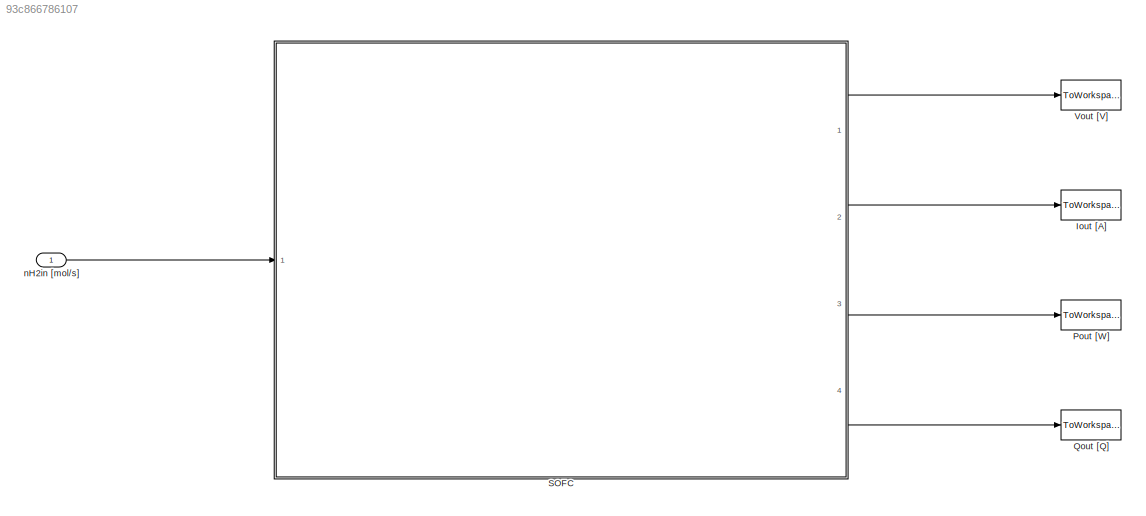
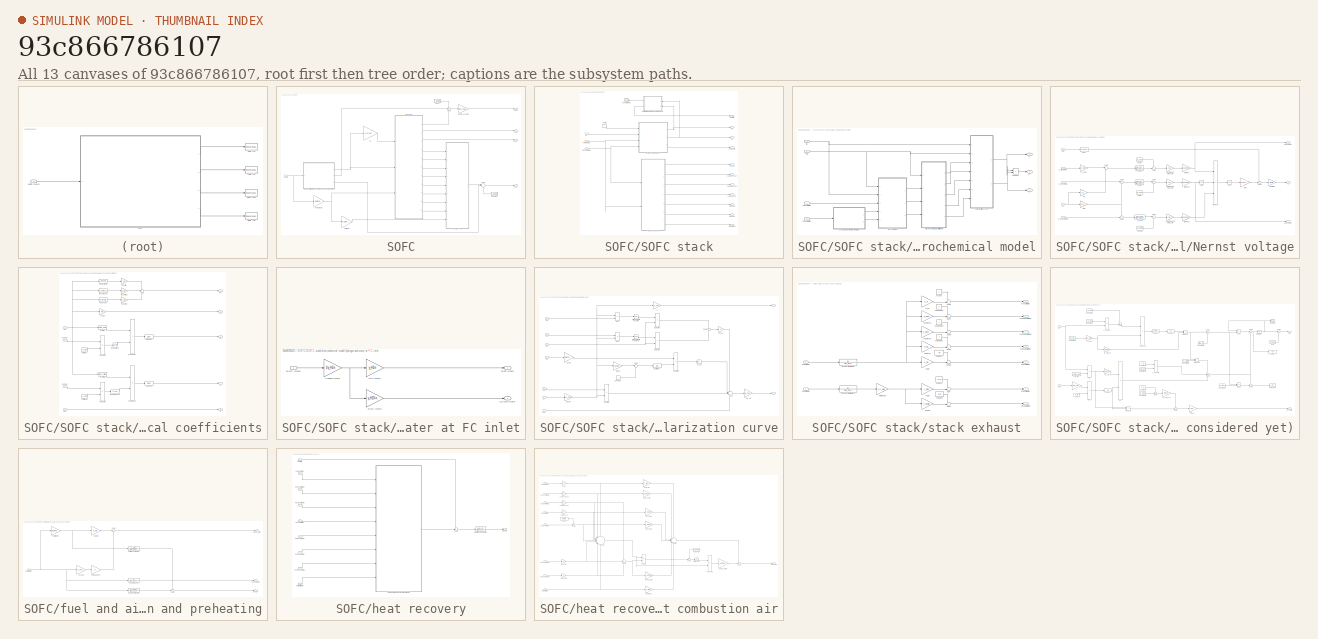
[diagram: thumbnail index - all 13 canvases of the model, root first then tree order]
MODEL slx_93c866786107
KIND model
CONFIG AbsTol = auto
CONFIG FixedStep = auto
CONFIG MaxStep = 1
CONFIG MinStep = 0.00001
CONFIG RelTol = 1e-3
CONFIG SampleTimeConstraint = Unconstrained
CONFIG Solver = ode113
CONFIG SolverMode = SingleTasking
CONFIG SolverName = ode113
CONFIG StartTime = 0.0
CONFIG StopTime = 1000
BLOCK [ToWorkspace] Iout [A]
  FixptAsFi = on
  MaxDataPoints = inf
  Ports = [1]
  SampleTime = -1
  Save2DSignal = 3-D array (concatenate along third dimension)
  SaveFormat = Timeseries
  VariableName = II
BLOCK [ToWorkspace] Pout [W]
  FixptAsFi = on
  MaxDataPoints = inf
  Ports = [1]
  SampleTime = -1
  Save2DSignal = 3-D array (concatenate along third dimension)
  SaveFormat = Timeseries
  VariableName = PP
BLOCK [ToWorkspace] Qout [Q]
  FixptAsFi = on
  MaxDataPoints = inf
  Ports = [1]
  SampleTime = -1
  Save2DSignal = 3-D array (concatenate along third dimension)
  SaveFormat = Timeseries
  VariableName = QQ
BLOCK [SubSystem] SOFC
  Ports = [1, 4]
  RequestExecContextInheritance = off
  Variant = off
BLOCK [Gain] SOFC/AC//DC converter
  Gain = eta_ACDC
  OutDataTypeStr = Inherit: Inherit via internal rule
  ParamDataTypeStr = Inherit: Inherit via internal rule
  SaturateOnIntegerOverflow = off
BLOCK [Gain] SOFC/I [A]
  Gain = 2*F*U/N_cell
  OutDataTypeStr = Inherit: Inherit via internal rule
  ParamDataTypeStr = Inherit: Inherit via internal rule
  SaturateOnIntegerOverflow = off
BLOCK [Outport] SOFC/Iout
  IconDisplay = Port number
  Port = 2
BLOCK [Constant] SOFC/Paux
  Value = P_gamma
BLOCK [Outport] SOFC/Pout
  IconDisplay = Port number
  Port = 3
BLOCK [Constant] SOFC/Q heat up
  Value = Q_gamma
BLOCK [Outport] SOFC/Qout
  IconDisplay = Port number
  Port = 4
BLOCK [SubSystem] SOFC/SOFC stack
  Ports = [3, 11]
  RequestExecContextInheritance = off
  Variant = off
BLOCK [Inport] SOFC/SOFC stack/I [A]
  IconDisplay = Port number
BLOCK [Outport] SOFC/SOFC stack/I [A] 
  IconDisplay = Port number
  Port = 3
BLOCK [Outport] SOFC/SOFC stack/Pstack [W]
  IconDisplay = Port number
BLOCK [Outport] SOFC/SOFC stack/Qcell [W]
  IconDisplay = Port number
  Port = 4
BLOCK [Scope] SOFC/SOFC stack/T evolution [K]
  Ports = [1]
  ScopeSpecificationString = C++SS(StrPVP('SaveName','ScopeData1'),StrPVP('LimitDataPoints','on'),StrPVP('DataFormat','Array'),StrPVP('Decimation','1'),StrPVP('BlockParamSampleInput','off'))
BLOCK [Constant] SOFC/SOFC stack/Tcell [K]
  Value = T
BLOCK [Outport] SOFC/SOFC stack/V [V]
  IconDisplay = Port number
  Port = 2
BLOCK [SubSystem] SOFC/SOFC stack/electrochemical model
  Ports = [4, 3]
  RequestExecContextInheritance = off
  Variant = off
BLOCK [Outport] SOFC/SOFC stack/electrochemical model/I
  IconDisplay = Port number
  Port = 2
BLOCK [Inport] SOFC/SOFC stack/electrochemical model/I [A]
  IconDisplay = Port number
  Port = 2
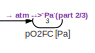
[diagram: SOFC/SOFC stack/electrochemical model/Nernst voltage - part 1/3, top right region]
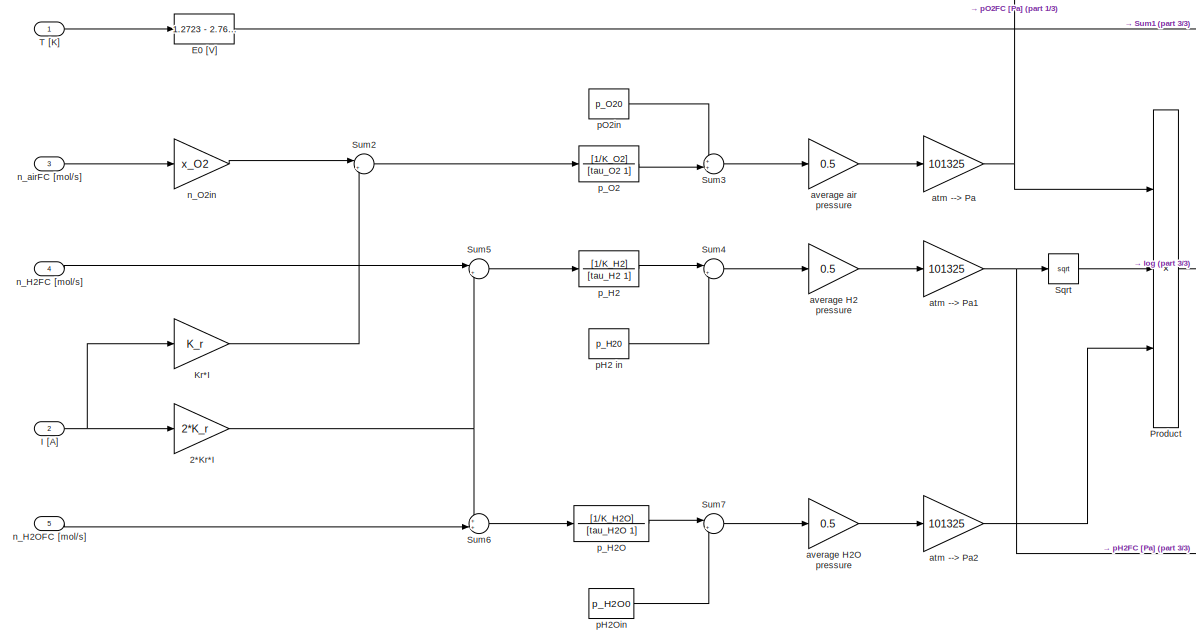
[diagram: SOFC/SOFC stack/electrochemical model/Nernst voltage - part 2/3, center side, full height]
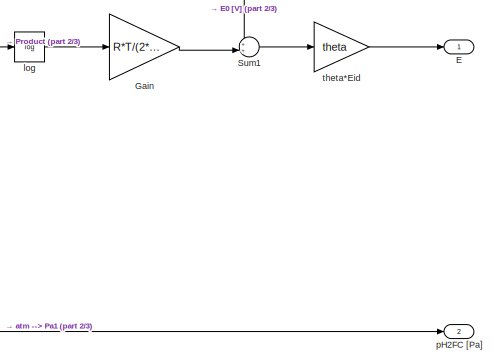
[diagram: SOFC/SOFC stack/electrochemical model/Nernst voltage - part 3/3, middle right region]
BLOCK [SubSystem] SOFC/SOFC stack/electrochemical model/Nernst voltage
  Ports = [5, 3]
  RequestExecContextInheritance = off
  Variant = off
BLOCK [Gain] SOFC/SOFC stack/electrochemical model/Nernst voltage/2*Kr*I
  Gain = 2*K_r
  OutDataTypeStr = Inherit: Inherit via internal rule
  ParamDataTypeStr = Inherit: Inherit via internal rule
  SaturateOnIntegerOverflow = off
BLOCK [Outport] SOFC/SOFC stack/electrochemical model/Nernst voltage/E
  IconDisplay = Port number
BLOCK [Fcn] SOFC/SOFC stack/electrochemical model/Nernst voltage/E0 [V]
  Expr = 1.2723 - 2.7645e-4 * u
BLOCK [Gain] SOFC/SOFC stack/electrochemical model/Nernst voltage/Gain
  Gain = R*T/(2*F)
  OutDataTypeStr = Inherit: Inherit via internal rule
  ParamDataTypeStr = Inherit: Inherit via internal rule
  SaturateOnIntegerOverflow = off
BLOCK [Inport] SOFC/SOFC stack/electrochemical model/Nernst voltage/I [A]
  IconDisplay = Port number
  Port = 2
BLOCK [Gain] SOFC/SOFC stack/electrochemical model/Nernst voltage/Kr*I
  Gain = K_r
  OutDataTypeStr = Inherit: Inherit via internal rule
  ParamDataTypeStr = Inherit: Inherit via internal rule
  SaturateOnIntegerOverflow = off
BLOCK [Product] SOFC/SOFC stack/electrochemical model/Nernst voltage/Product
  InputSameDT = off
  Inputs = **/
  OutDataTypeStr = Inherit: Inherit via internal rule
  Ports = [3, 1]
  RndMeth = Floor
  SaturateOnIntegerOverflow = off
BLOCK [Sqrt] SOFC/SOFC stack/electrochemical model/Nernst voltage/Sqrt
BLOCK [Sum] SOFC/SOFC stack/electrochemical model/Nernst voltage/Sum1
  IconShape = round
  InputSameDT = off
  Inputs = ++|
  OutDataTypeStr = Inherit: Inherit via internal rule
  Ports = [2, 1]
  SaturateOnIntegerOverflow = off
BLOCK [Sum] SOFC/SOFC stack/electrochemical model/Nernst voltage/Sum2
  IconShape = round
  InputSameDT = off
  Inputs = |+-
  OutDataTypeStr = Inherit: Inherit via internal rule
  Ports = [2, 1]
  SaturateOnIntegerOverflow = off
BLOCK [Sum] SOFC/SOFC stack/electrochemical model/Nernst voltage/Sum3
  IconShape = round
  InputSameDT = off
  Inputs = ++|
  OutDataTypeStr = Inherit: Inherit via internal rule
  Ports = [2, 1]
  SaturateOnIntegerOverflow = off
BLOCK [Sum] SOFC/SOFC stack/electrochemical model/Nernst voltage/Sum4
  IconShape = round
  InputSameDT = off
  Inputs = |++
  OutDataTypeStr = Inherit: Inherit via internal rule
  Ports = [2, 1]
  SaturateOnIntegerOverflow = off
BLOCK [Sum] SOFC/SOFC stack/electrochemical model/Nernst voltage/Sum5
  IconShape = round
  InputSameDT = off
  Inputs = |+-
  OutDataTypeStr = Inherit: Inherit via internal rule
  Ports = [2, 1]
  SaturateOnIntegerOverflow = off
BLOCK [Sum] SOFC/SOFC stack/electrochemical model/Nernst voltage/Sum6
  IconShape = round
  InputSameDT = off
  Inputs = ++|
  OutDataTypeStr = Inherit: Inherit via internal rule
  Ports = [2, 1]
  SaturateOnIntegerOverflow = off
BLOCK [Sum] SOFC/SOFC stack/electrochemical model/Nernst voltage/Sum7
  IconShape = round
  InputSameDT = off
  Inputs = |++
  OutDataTypeStr = Inherit: Inherit via internal rule
  Ports = [2, 1]
  SaturateOnIntegerOverflow = off
BLOCK [Inport] SOFC/SOFC stack/electrochemical model/Nernst voltage/T [K]
  IconDisplay = Port number
BLOCK [Gain] SOFC/SOFC stack/electrochemical model/Nernst voltage/atm --> Pa
  Gain = 101325
  OutDataTypeStr = Inherit: Inherit via internal rule
  ParamDataTypeStr = Inherit: Inherit via internal rule
  SaturateOnIntegerOverflow = off
BLOCK [Gain] SOFC/SOFC stack/electrochemical model/Nernst voltage/atm --> Pa1
  Gain = 101325
  OutDataTypeStr = Inherit: Inherit via internal rule
  ParamDataTypeStr = Inherit: Inherit via internal rule
  SaturateOnIntegerOverflow = off
BLOCK [Gain] SOFC/SOFC stack/electrochemical model/Nernst voltage/atm --> Pa2
  Gain = 101325
  OutDataTypeStr = Inherit: Inherit via internal rule
  ParamDataTypeStr = Inherit: Inherit via internal rule
  SaturateOnIntegerOverflow = off
BLOCK [Gain] SOFC/SOFC stack/electrochemical model/Nernst voltage/average H2 pressure
  Gain = 0.5
  OutDataTypeStr = Inherit: Inherit via internal rule
  ParamDataTypeStr = Inherit: Inherit via internal rule
  SaturateOnIntegerOverflow = off
BLOCK [Gain] SOFC/SOFC stack/electrochemical model/Nernst voltage/average H2O pressure
  Gain = 0.5
  OutDataTypeStr = Inherit: Inherit via internal rule
  ParamDataTypeStr = Inherit: Inherit via internal rule
  SaturateOnIntegerOverflow = off
BLOCK [Gain] SOFC/SOFC stack/electrochemical model/Nernst voltage/average air pressure
  Gain = 0.5
  OutDataTypeStr = Inherit: Inherit via internal rule
  ParamDataTypeStr = Inherit: Inherit via internal rule
  SaturateOnIntegerOverflow = off
BLOCK [Math] SOFC/SOFC stack/electrochemical model/Nernst voltage/log
  Operator = log
  Ports = [1, 1]
BLOCK [Inport] SOFC/SOFC stack/electrochemical model/Nernst voltage/n_H2FC [mol//s]
  IconDisplay = Port number
  Port = 4
BLOCK [Inport] SOFC/SOFC stack/electrochemical model/Nernst voltage/n_H2OFC [mol//s]
  IconDisplay = Port number
  Port = 5
BLOCK [Gain] SOFC/SOFC stack/electrochemical model/Nernst voltage/n_O2in
  Gain = x_O2
  OutDataTypeStr = Inherit: Inherit via internal rule
  ParamDataTypeStr = Inherit: Inherit via internal rule
  SaturateOnIntegerOverflow = off
BLOCK [Inport] SOFC/SOFC stack/electrochemical model/Nernst voltage/n_airFC [mol//s]
  IconDisplay = Port number
  Port = 3
BLOCK [Constant] SOFC/SOFC stack/electrochemical model/Nernst voltage/pH2 in
  Value = p_H20
BLOCK [Outport] SOFC/SOFC stack/electrochemical model/Nernst voltage/pH2FC [Pa]
  IconDisplay = Port number
  Port = 2
BLOCK [Constant] SOFC/SOFC stack/electrochemical model/Nernst voltage/pH2Oin
  Value = p_H2O0
BLOCK [Outport] SOFC/SOFC stack/electrochemical model/Nernst voltage/pO2FC [Pa]
  IconDisplay = Port number
  Port = 3
BLOCK [Constant] SOFC/SOFC stack/electrochemical model/Nernst voltage/pO2in
  Value = p_O20
BLOCK [TransferFcn] SOFC/SOFC stack/electrochemical model/Nernst voltage/p_H2
  ContinuousStateAttributes = 'p_H2'
  Denominator = [tau_H2 1]
  Numerator = [1/K_H2]
BLOCK [TransferFcn] SOFC/SOFC stack/electrochemical model/Nernst voltage/p_H2O
  ContinuousStateAttributes = 'p_H2'
  Denominator = [tau_H2O 1]
  Numerator = [1/K_H2O]
BLOCK [TransferFcn] SOFC/SOFC stack/electrochemical model/Nernst voltage/p_O2
  ContinuousStateAttributes = 'p_O2'
  Denominator = [tau_O2 1]
  Numerator = [1/K_O2]
BLOCK [Gain] SOFC/SOFC stack/electrochemical model/Nernst voltage/theta*Eid
  Gain = theta
  OutDataTypeStr = Inherit: Inherit via internal rule
  ParamDataTypeStr = Inherit: Inherit via internal rule
  SaturateOnIntegerOverflow = off
BLOCK [Outport] SOFC/SOFC stack/electrochemical model/P
  IconDisplay = Port number
  Port = 3
BLOCK [Product] SOFC/SOFC stack/electrochemical model/Product
  InputSameDT = off
  OutDataTypeStr = Inherit: Inherit via internal rule
  Ports = [2, 1]
  RndMeth = Floor
  SaturateOnIntegerOverflow = off
BLOCK [Inport] SOFC/SOFC stack/electrochemical model/T [K]
  IconDisplay = Port number
BLOCK [Outport] SOFC/SOFC stack/electrochemical model/V
  IconDisplay = Port number
BLOCK [SubSystem] SOFC/SOFC stack/electrochemical model/electrochemical coefficients
  Ports = [4, 5]
  RequestExecContextInheritance = off
  Variant = off
BLOCK [Fcn] SOFC/SOFC stack/electrochemical model/electrochemical coefficients/(pH2//patm)^0.25
  Expr = u^0.25
BLOCK [Math] SOFC/SOFC stack/electrochemical model/electrochemical coefficients/(pH2//patm)^2
  Operator = magnitude^2
  Ports = [1, 1]
BLOCK [Outport] SOFC/SOFC stack/electrochemical model/electrochemical coefficients/E
  IconDisplay = Port number
  Port = 5
BLOCK [Inport] SOFC/SOFC stack/electrochemical model/electrochemical coefficients/E [V]
  IconDisplay = Port number
  Port = 2
BLOCK [Outport] SOFC/SOFC stack/electrochemical model/electrochemical coefficients/K1
  IconDisplay = Port number
  Port = 2
BLOCK [Gain] SOFC/SOFC stack/electrochemical model/electrochemical coefficients/K1 [J//C]
  Gain = R/F
  OutDataTypeStr = Inherit: Inherit via internal rule
  ParamDataTypeStr = Inherit: Inherit via internal rule
  SaturateOnIntegerOverflow = off
BLOCK [Outport] SOFC/SOFC stack/electrochemical model/electrochemical coefficients/K2
  IconDisplay = Port number
  Port = 3
BLOCK [Fcn] SOFC/SOFC stack/electrochemical model/electrochemical coefficients/K2 [cm2//A]
  Expr = 1/(2*u)
BLOCK [Outport] SOFC/SOFC stack/electrochemical model/electrochemical coefficients/K3
  IconDisplay = Port number
  Port = 4
BLOCK [Fcn] SOFC/SOFC stack/electrochemical model/electrochemical coefficients/K3 [cm2//a]
  Expr = 1/(2*u)
BLOCK [Sum] SOFC/SOFC stack/electrochemical model/electrochemical coefficients/Sum
  IconShape = round
  InputSameDT = off
  Inputs = +++
  OutDataTypeStr = Inherit: Inherit via internal rule
  Ports = [3, 1]
  SaturateOnIntegerOverflow = off
BLOCK [Inport] SOFC/SOFC stack/electrochemical model/electrochemical coefficients/T [K]
  IconDisplay = Port number
BLOCK [Fcn] SOFC/SOFC stack/electrochemical model/electrochemical coefficients/exp(f(T))
  Expr = gamma_an * (exp (- E_act_an/(R*u)))
BLOCK [Fcn] SOFC/SOFC stack/electrochemical model/electrochemical coefficients/exp(f(T))1
  Expr = gamma_cat*(exp (-E_act_cat/(R*u)))
BLOCK [Product] SOFC/SOFC stack/electrochemical model/electrochemical coefficients/i0 an [A//cm2]
  InputSameDT = off
  OutDataTypeStr = Inherit: Inherit via internal rule
  Ports = [2, 1]
  RndMeth = Floor
  SaturateOnIntegerOverflow = off
BLOCK [Product] SOFC/SOFC stack/electrochemical model/electrochemical coefficients/i0 cat [A//cm2]
  InputSameDT = off
  OutDataTypeStr = Inherit: Inherit via internal rule
  Ports = [2, 1]
  RndMeth = Floor
  SaturateOnIntegerOverflow = off
BLOCK [Constant] SOFC/SOFC stack/electrochemical model/electrochemical coefficients/p atm [Pa]
  Value = p_atm
BLOCK [Constant] SOFC/SOFC stack/electrochemical model/electrochemical coefficients/p atm [Pa]1
  Value = p_atm
BLOCK [Inport] SOFC/SOFC stack/electrochemical model/electrochemical coefficients/pH2 [Pa] 
  IconDisplay = Port number
  Port = 3
BLOCK [Product] SOFC/SOFC stack/electrochemical model/electrochemical coefficients/pH2//patm
  InputSameDT = off
  Inputs = */
  OutDataTypeStr = Inherit: Inherit via internal rule
  Ports = [2, 1]
  RndMeth = Floor
  SaturateOnIntegerOverflow = off
BLOCK [Inport] SOFC/SOFC stack/electrochemical model/electrochemical coefficients/pO2 [Pa]
  IconDisplay = Port number
  Port = 4
BLOCK [Product] SOFC/SOFC stack/electrochemical model/electrochemical coefficients/pO2//patm
  InputSameDT = off
  Inputs = */
  OutDataTypeStr = Inherit: Inherit via internal rule
  Ports = [2, 1]
  RndMeth = Floor
  SaturateOnIntegerOverflow = off
BLOCK [Outport] SOFC/SOFC stack/electrochemical model/electrochemical coefficients/rho
  IconDisplay = Port number
BLOCK [Fcn] SOFC/SOFC stack/electrochemical model/electrochemical coefficients/rho anode
  Expr = A_an * exp (B_an / u)
BLOCK [Fcn] SOFC/SOFC stack/electrochemical model/electrochemical coefficients/rho cathode
  Expr = A_cat * exp (B_cat / u)
BLOCK [Fcn] SOFC/SOFC stack/electrochemical model/electrochemical coefficients/rho electrolyte
  Expr = A_el * exp (B_el / u)
BLOCK [Gain] SOFC/SOFC stack/electrochemical model/electrochemical coefficients/rhoan * tan
  Gain = t_an
  OutDataTypeStr = Inherit: Inherit via internal rule
  ParamDataTypeStr = Inherit: Inherit via internal rule
  SaturateOnIntegerOverflow = off
BLOCK [Gain] SOFC/SOFC stack/electrochemical model/electrochemical coefficients/rhocat * tcat
  Gain = t_cat
  OutDataTypeStr = Inherit: Inherit via internal rule
  ParamDataTypeStr = Inherit: Inherit via internal rule
  SaturateOnIntegerOverflow = off
BLOCK [Gain] SOFC/SOFC stack/electrochemical model/electrochemical coefficients/rhoel * tel
  Gain = t_el
  OutDataTypeStr = Inherit: Inherit via internal rule
  ParamDataTypeStr = Inherit: Inherit via internal rule
  SaturateOnIntegerOverflow = off
BLOCK [SubSystem] SOFC/SOFC stack/electrochemical model/hydrogen and water at FC inlet
  Ports = [1, 2]
  RequestExecContextInheritance = off
  Variant = off
BLOCK [Gain] SOFC/SOFC stack/electrochemical model/hydrogen and water at FC inlet/n anode [mol//s]
  Gain = 1/y_H2in
  OutDataTypeStr = Inherit: Inherit via internal rule
  ParamDataTypeStr = Inherit: Inherit via internal rule
  SaturateOnIntegerOverflow = off
BLOCK [Gain] SOFC/SOFC stack/electrochemical model/hydrogen and water at FC inlet/nH2 [mol//s]
  Gain = y_H2in
  OutDataTypeStr = Inherit: Inherit via internal rule
  ParamDataTypeStr = Inherit: Inherit via internal rule
  SaturateOnIntegerOverflow = off
BLOCK [Inport] SOFC/SOFC stack/electrochemical model/hydrogen and water at FC inlet/nH2FC [mol//s]
  IconDisplay = Port number
BLOCK [Gain] SOFC/SOFC stack/electrochemical model/hydrogen and water at FC inlet/nH2O [mol//s]
  Gain = y_H2Oin
  OutDataTypeStr = Inherit: Inherit via internal rule
  ParamDataTypeStr = Inherit: Inherit via internal rule
  SaturateOnIntegerOverflow = off
BLOCK [Outport] SOFC/SOFC stack/electrochemical model/hydrogen and water at FC inlet/nH2in [mol//s]
  IconDisplay = Port number
BLOCK [Outport] SOFC/SOFC stack/electrochemical model/hydrogen and water at FC inlet/n_H2Oin [mol//s]
  IconDisplay = Port number
  Port = 2
BLOCK [Inport] SOFC/SOFC stack/electrochemical model/nH2FC [mol//s]
  IconDisplay = Port number
  Port = 4
BLOCK [Inport] SOFC/SOFC stack/electrochemical model/nairFC [mol//s]
  IconDisplay = Port number
  Port = 3
BLOCK [SubSystem] SOFC/SOFC stack/electrochemical model/polarization curve
  Ports = [7, 2]
  RequestExecContextInheritance = off
  Variant = off
BLOCK [Gain] SOFC/SOFC stack/electrochemical model/polarization curve/CF act
  OutDataTypeStr = Inherit: Inherit via internal rule
  ParamDataTypeStr = Inherit: Inherit via internal rule
  SaturateOnIntegerOverflow = off
BLOCK [Constant] SOFC/SOFC stack/electrochemical model/polarization curve/Constant
BLOCK [Inport] SOFC/SOFC stack/electrochemical model/polarization curve/E [V]
  IconDisplay = Port number
  Port = 7
BLOCK [Outport] SOFC/SOFC stack/electrochemical model/polarization curve/I
  IconDisplay = Port number
  Port = 2
BLOCK [Inport] SOFC/SOFC stack/electrochemical model/polarization curve/I [A] 
  IconDisplay = Port number
BLOCK [Inport] SOFC/SOFC stack/electrochemical model/polarization curve/K1
  IconDisplay = Port number
  Port = 4
BLOCK [Inport] SOFC/SOFC stack/electrochemical model/polarization curve/K2
  IconDisplay = Port number
  Port = 5
BLOCK [Product] SOFC/SOFC stack/electrochemical model/polarization curve/K2*i
  InputSameDT = off
  OutDataTypeStr = Inherit: Inherit via internal rule
  Ports = [2, 1]
  RndMeth = Floor
  SaturateOnIntegerOverflow = off
BLOCK [Inport] SOFC/SOFC stack/electrochemical model/polarization curve/K3
  IconDisplay = Port number
  Port = 6
BLOCK [Product] SOFC/SOFC stack/electrochemical model/polarization curve/K3*i
  InputSameDT = off
  OutDataTypeStr = Inherit: Inherit via internal rule
  Ports = [2, 1]
  RndMeth = Floor
  SaturateOnIntegerOverflow = off
BLOCK [Gain] SOFC/SOFC stack/electrochemical model/polarization curve/RT//2F
  Gain = R/(2*F)
  OutDataTypeStr = Inherit: Inherit via internal rule
  ParamDataTypeStr = Inherit: Inherit via internal rule
  SaturateOnIntegerOverflow = off
BLOCK [Sum] SOFC/SOFC stack/electrochemical model/polarization curve/Sum
  IconShape = round
  InputSameDT = off
  Inputs = ---|+
  OutDataTypeStr = Inherit: Inherit via internal rule
  Ports = [4, 1]
  SaturateOnIntegerOverflow = off
BLOCK [Sum] SOFC/SOFC stack/electrochemical model/polarization curve/Sum1
  IconShape = round
  InputSameDT = off
  Inputs = |-+
  OutDataTypeStr = Inherit: Inherit via internal rule
  Ports = [2, 1]
  SaturateOnIntegerOverflow = off
BLOCK [Sum] SOFC/SOFC stack/electrochemical model/polarization curve/Sum4
  IconShape = round
  InputSameDT = off
  Inputs = +|+
  OutDataTypeStr = Inherit: Inherit via internal rule
  Ports = [2, 1]
  SaturateOnIntegerOverflow = off
BLOCK [Inport] SOFC/SOFC stack/electrochemical model/polarization curve/T [K]
  IconDisplay = Port number
  Port = 2
BLOCK [Trigonometry] SOFC/SOFC stack/electrochemical model/polarization curve/Trigonometric Function
  Operator = asinh
  Ports = [1, 1]
BLOCK [Trigonometry] SOFC/SOFC stack/electrochemical model/polarization curve/Trigonometric Function1
  Operator = asinh
  Ports = [1, 1]
BLOCK [Outport] SOFC/SOFC stack/electrochemical model/polarization curve/V
  IconDisplay = Port number
BLOCK [Abs] SOFC/SOFC stack/electrochemical model/polarization curve/V_con
  SaturateOnIntegerOverflow = off
BLOCK [Product] SOFC/SOFC stack/electrochemical model/polarization curve/Vohm [V]
  InputSameDT = off
  OutDataTypeStr = Inherit: Inherit via internal rule
  Ports = [2, 1]
  RndMeth = Floor
  SaturateOnIntegerOverflow = off
BLOCK [Product] SOFC/SOFC stack/electrochemical model/polarization curve/Vohm [V]1
  InputSameDT = off
  OutDataTypeStr = Inherit: Inherit via internal rule
  Ports = [2, 1]
  RndMeth = Floor
  SaturateOnIntegerOverflow = off
BLOCK [Gain] SOFC/SOFC stack/electrochemical model/polarization curve/i [A//cm2]
  Gain = 1/A_cell
  OutDataTypeStr = Inherit: Inherit via internal rule
  ParamDataTypeStr = Inherit: Inherit via internal rule
  SaturateOnIntegerOverflow = off
BLOCK [Gain] SOFC/SOFC stack/electrochemical model/polarization curve/i//i_max
  Gain = 1/i_max
  OutDataTypeStr = Inherit: Inherit via internal rule
  ParamDataTypeStr = Inherit: Inherit via internal rule
  SaturateOnIntegerOverflow = off
BLOCK [Gain] SOFC/SOFC stack/electrochemical model/polarization curve/i1
  Gain = A_cell
  OutDataTypeStr = Inherit: Inherit via internal rule
  ParamDataTypeStr = Inherit: Inherit via internal rule
  SaturateOnIntegerOverflow = off
BLOCK [Math] SOFC/SOFC stack/electrochemical model/polarization curve/log(1 - i//imax)
  Operator = log
  Ports = [1, 1]
BLOCK [Product] SOFC/SOFC stack/electrochemical model/polarization curve/log(K2)*K1
  InputSameDT = off
  OutDataTypeStr = Inherit: Inherit via internal rule
  Ports = [2, 1]
  RndMeth = Floor
  SaturateOnIntegerOverflow = off
BLOCK [Product] SOFC/SOFC stack/electrochemical model/polarization curve/log(K3)*K1
  InputSameDT = off
  OutDataTypeStr = Inherit: Inherit via internal rule
  Ports = [2, 1]
  RndMeth = Floor
  SaturateOnIntegerOverflow = off
BLOCK [Inport] SOFC/SOFC stack/electrochemical model/polarization curve/rho
  IconDisplay = Port number
  Port = 3
BLOCK [Gain] SOFC/SOFC stack/electrochemical model/polarization curve/v*N_cell
  Gain = N_cell
  OutDataTypeStr = Inherit: Inherit via internal rule
  ParamDataTypeStr = Inherit: Inherit via internal rule
  SaturateOnIntegerOverflow = off
BLOCK [Outport] SOFC/SOFC stack/nArexh
  IconDisplay = Port number
  Port = 5
BLOCK [Outport] SOFC/SOFC stack/nCO2exh cat
  IconDisplay = Port number
  Port = 6
BLOCK [Inport] SOFC/SOFC stack/nH2FC [mol//s]
  IconDisplay = Port number
  Port = 2
BLOCK [Outport] SOFC/SOFC stack/nH2Oexh
  IconDisplay = Port number
  Port = 11
BLOCK [Outport] SOFC/SOFC stack/nH2Oexh cat
  IconDisplay = Port number
  Port = 7
BLOCK [Outport] SOFC/SOFC stack/nH2exh
  IconDisplay = Port number
  Port = 10
BLOCK [Outport] SOFC/SOFC stack/nN2exh cat
  IconDisplay = Port number
  Port = 8
BLOCK [Outport] SOFC/SOFC stack/nO2exh
  IconDisplay = Port number
  Port = 9
BLOCK [Inport] SOFC/SOFC stack/nairFC [mol//s]
  IconDisplay = Port number
  Port = 3
BLOCK [SubSystem] SOFC/SOFC stack/stack exhaust
  Ports = [2, 7]
  RequestExecContextInheritance = off
  Variant = off
BLOCK [Sum] SOFC/SOFC stack/stack exhaust/Sum
  IconShape = round
  InputSameDT = off
  Inputs = ++|
  OutDataTypeStr = Inherit: Inherit via internal rule
  Ports = [2, 1]
  SaturateOnIntegerOverflow = off
BLOCK [Sum] SOFC/SOFC stack/stack exhaust/Sum1
  IconShape = round
  InputSameDT = off
  Inputs = ++|
  OutDataTypeStr = Inherit: Inherit via internal rule
  Ports = [2, 1]
  SaturateOnIntegerOverflow = off
BLOCK [Sum] SOFC/SOFC stack/stack exhaust/Sum10
  IconShape = round
  InputSameDT = off
  Inputs = ++|
  OutDataTypeStr = Inherit: Inherit via internal rule
  Ports = [2, 1]
  SaturateOnIntegerOverflow = off
BLOCK [Sum] SOFC/SOFC stack/stack exhaust/Sum6
  IconShape = round
  InputSameDT = off
  Inputs = ++|
  OutDataTypeStr = Inherit: Inherit via internal rule
  Ports = [2, 1]
  SaturateOnIntegerOverflow = off
BLOCK [Sum] SOFC/SOFC stack/stack exhaust/Sum7
  IconShape = round
  InputSameDT = off
  Inputs = ++|
  OutDataTypeStr = Inherit: Inherit via internal rule
  Ports = [2, 1]
  SaturateOnIntegerOverflow = off
BLOCK [Sum] SOFC/SOFC stack/stack exhaust/Sum8
  IconShape = round
  InputSameDT = off
  Inputs = ++|
  OutDataTypeStr = Inherit: Inherit via internal rule
  Ports = [2, 1]
  SaturateOnIntegerOverflow = off
BLOCK [Sum] SOFC/SOFC stack/stack exhaust/Sum9
  IconShape = round
  InputSameDT = off
  Inputs = ++|
  OutDataTypeStr = Inherit: Inherit via internal rule
  Ports = [2, 1]
  SaturateOnIntegerOverflow = off
BLOCK [TransferFcn] SOFC/SOFC stack/stack exhaust/air overall cell delay
  ContinuousStateAttributes = 'p_O2'
  Denominator = [tau_O2 1]
BLOCK [TransferFcn] SOFC/SOFC stack/stack exhaust/air overall cell delay1
  ContinuousStateAttributes = 'p_O2'
  Denominator = [tau_H2 1]
BLOCK [Gain] SOFC/SOFC stack/stack exhaust/nArin
  Gain = x_Ar
  OutDataTypeStr = Inherit: Inherit via internal rule
  ParamDataTypeStr = Inherit: Inherit via internal rule
  SaturateOnIntegerOverflow = off
BLOCK [Constant] SOFC/SOFC stack/stack exhaust/nArout
  Value = 0
BLOCK [Outport] SOFC/SOFC stack/stack exhaust/nArout [mol//s]
  IconDisplay = Port number
BLOCK [Gain] SOFC/SOFC stack/stack exhaust/nCO2in cat
  Gain = x_CO2
  OutDataTypeStr = Inherit: Inherit via internal rule
  ParamDataTypeStr = Inherit: Inherit via internal rule
  SaturateOnIntegerOverflow = off
BLOCK [Constant] SOFC/SOFC stack/stack exhaust/nCO2out cat
  Value = 0
BLOCK [Outport] SOFC/SOFC stack/stack exhaust/nCO2out cat [mol//s]
  IconDisplay = Port number
  Port = 2
BLOCK [Gain] SOFC/SOFC stack/stack exhaust/nH2Oin
  Gain = y_H2Oin
  OutDataTypeStr = Inherit: Inherit via internal rule
  ParamDataTypeStr = Inherit: Inherit via internal rule
  SaturateOnIntegerOverflow = off
BLOCK [Gain] SOFC/SOFC stack/stack exhaust/nH2Oin cat
  Gain = x_H2O
  OutDataTypeStr = Inherit: Inherit via internal rule
  ParamDataTypeStr = Inherit: Inherit via internal rule
  SaturateOnIntegerOverflow = off
BLOCK [Constant] SOFC/SOFC stack/stack exhaust/nH2Oout
  Value = 2*Kr
BLOCK [Outport] SOFC/SOFC stack/stack exhaust/nH2Oout [mol//s]
  IconDisplay = Port number
  Port = 7
BLOCK [Constant] SOFC/SOFC stack/stack exhaust/nH2Oout cat
  Value = 0
BLOCK [Outport] SOFC/SOFC stack/stack exhaust/nH2Oout cat [mol//s]
  IconDisplay = Port number
  Port = 3
BLOCK [Gain] SOFC/SOFC stack/stack exhaust/nH2in
  Gain = y_H2in
  OutDataTypeStr = Inherit: Inherit via internal rule
  ParamDataTypeStr = Inherit: Inherit via internal rule
  SaturateOnIntegerOverflow = off
BLOCK [Inport] SOFC/SOFC stack/stack exhaust/nH2in [mol//s]
  IconDisplay = Port number
BLOCK [Constant] SOFC/SOFC stack/stack exhaust/nH2out
  Value = -2*Kr
BLOCK [Outport] SOFC/SOFC stack/stack exhaust/nH2out [mol//s]
  IconDisplay = Port number
  Port = 6
BLOCK [Gain] SOFC/SOFC stack/stack exhaust/nN2in cat
  Gain = x_N2
  OutDataTypeStr = Inherit: Inherit via internal rule
  ParamDataTypeStr = Inherit: Inherit via internal rule
  SaturateOnIntegerOverflow = off
BLOCK [Constant] SOFC/SOFC stack/stack exhaust/nN2out cat
  Value = 0
BLOCK [Outport] SOFC/SOFC stack/stack exhaust/nN2out cat [mol//s]
  IconDisplay = Port number
  Port = 4
BLOCK [Gain] SOFC/SOFC stack/stack exhaust/nO2in
  Gain = x_O2
  OutDataTypeStr = Inherit: Inherit via internal rule
  ParamDataTypeStr = Inherit: Inherit via internal rule
  SaturateOnIntegerOverflow = off
BLOCK [Constant] SOFC/SOFC stack/stack exhaust/nO2out
  Value = -Kr
BLOCK [Outport] SOFC/SOFC stack/stack exhaust/nO2out [mol//s]
  IconDisplay = Port number
  Port = 5
BLOCK [Inport] SOFC/SOFC stack/stack exhaust/nairin [mol//s]
  IconDisplay = Port number
  Port = 2
BLOCK [Gain] SOFC/SOFC stack/stack exhaust/ntot anode
  Gain = 1/y_H2in
  OutDataTypeStr = Inherit: Inherit via internal rule
  ParamDataTypeStr = Inherit: Inherit via internal rule
  SaturateOnIntegerOverflow = off
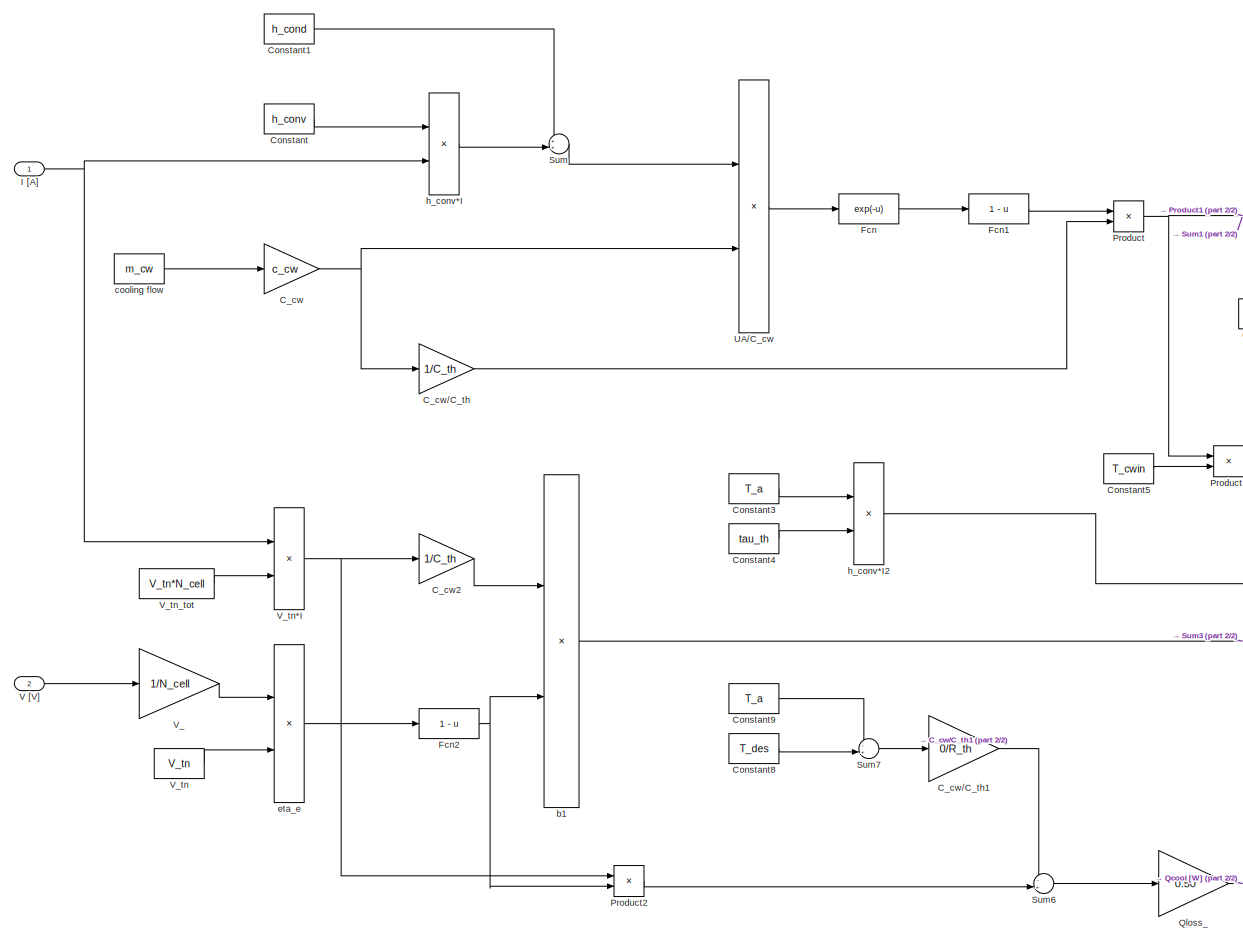
[diagram: SOFC/SOFC stack/thermal model (not considered yet) - part 1/2, left side, full height]
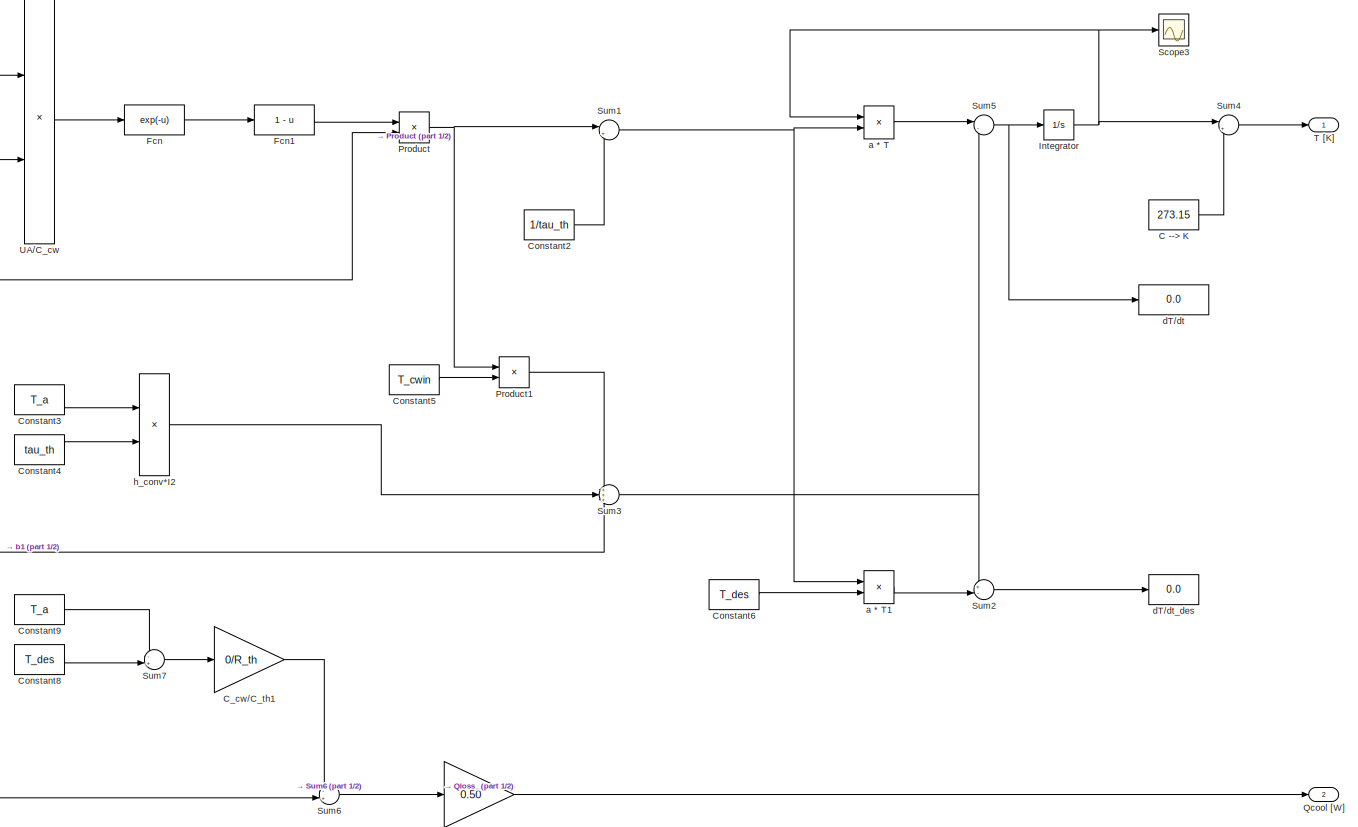
[diagram: SOFC/SOFC stack/thermal model (not considered yet) - part 2/2, right side, full height]
BLOCK [SubSystem] SOFC/SOFC stack/thermal model (not considered yet)
  Ports = [2, 2]
  RequestExecContextInheritance = off
  Variant = off
BLOCK [Constant] SOFC/SOFC stack/thermal model (not considered yet)/C --> K
  Value = 273.15
BLOCK [Gain] SOFC/SOFC stack/thermal model (not considered yet)/C_cw
  Gain = c_cw
  OutDataTypeStr = Inherit: Inherit via internal rule
  ParamDataTypeStr = Inherit: Inherit via internal rule
  SaturateOnIntegerOverflow = off
BLOCK [Gain] SOFC/SOFC stack/thermal model (not considered yet)/C_cw//C_th
  Gain = 1/C_th
  OutDataTypeStr = Inherit: Inherit via internal rule
  ParamDataTypeStr = Inherit: Inherit via internal rule
  SaturateOnIntegerOverflow = off
BLOCK [Gain] SOFC/SOFC stack/thermal model (not considered yet)/C_cw//C_th1
  Gain = 0/R_th
  OutDataTypeStr = Inherit: Inherit via internal rule
  ParamDataTypeStr = Inherit: Inherit via internal rule
  SaturateOnIntegerOverflow = off
BLOCK [Gain] SOFC/SOFC stack/thermal model (not considered yet)/C_cw2
  Gain = 1/C_th
  OutDataTypeStr = Inherit: Inherit via internal rule
  ParamDataTypeStr = Inherit: Inherit via internal rule
  SaturateOnIntegerOverflow = off
BLOCK [Constant] SOFC/SOFC stack/thermal model (not considered yet)/Constant
  Value = h_conv
BLOCK [Constant] SOFC/SOFC stack/thermal model (not considered yet)/Constant1
  Value = h_cond
BLOCK [Constant] SOFC/SOFC stack/thermal model (not considered yet)/Constant2
  Value = 1/tau_th
BLOCK [Constant] SOFC/SOFC stack/thermal model (not considered yet)/Constant3
  Value = T_a
BLOCK [Constant] SOFC/SOFC stack/thermal model (not considered yet)/Constant4
  Value = tau_th
BLOCK [Constant] SOFC/SOFC stack/thermal model (not considered yet)/Constant5
  Value = T_cwin
BLOCK [Constant] SOFC/SOFC stack/thermal model (not considered yet)/Constant6
  Value = T_des
BLOCK [Constant] SOFC/SOFC stack/thermal model (not considered yet)/Constant8
  Value = T_des
BLOCK [Constant] SOFC/SOFC stack/thermal model (not considered yet)/Constant9
  Value = T_a
BLOCK [Fcn] SOFC/SOFC stack/thermal model (not considered yet)/Fcn
  Expr = exp(-u)
BLOCK [Fcn] SOFC/SOFC stack/thermal model (not considered yet)/Fcn1
  Expr = 1 - u
BLOCK [Fcn] SOFC/SOFC stack/thermal model (not considered yet)/Fcn2
  Expr = 1 - u
BLOCK [Inport] SOFC/SOFC stack/thermal model (not considered yet)/I [A]
  IconDisplay = Port number
BLOCK [Integrator] SOFC/SOFC stack/thermal model (not considered yet)/Integrator
  AbsoluteTolerance = 1e-6
  InitialCondition = T0
  Ports = [1, 1]
BLOCK [Product] SOFC/SOFC stack/thermal model (not considered yet)/Product
  InputSameDT = off
  OutDataTypeStr = Inherit: Inherit via internal rule
  Ports = [2, 1]
  RndMeth = Floor
  SaturateOnIntegerOverflow = off
BLOCK [Product] SOFC/SOFC stack/thermal model (not considered yet)/Product1
  InputSameDT = off
  OutDataTypeStr = Inherit: Inherit via internal rule
  Ports = [2, 1]
  RndMeth = Floor
  SaturateOnIntegerOverflow = off
BLOCK [Product] SOFC/SOFC stack/thermal model (not considered yet)/Product2
  InputSameDT = off
  OutDataTypeStr = Inherit: Inherit via internal rule
  Ports = [2, 1]
  RndMeth = Floor
  SaturateOnIntegerOverflow = off
BLOCK [Outport] SOFC/SOFC stack/thermal model (not considered yet)/Qcool [W]
  IconDisplay = Port number
  Port = 2
BLOCK [Gain] SOFC/SOFC stack/thermal model (not considered yet)/Qloss_
  Gain = 0.50
  OutDataTypeStr = Inherit: Inherit via internal rule
  ParamDataTypeStr = Inherit: Inherit via internal rule
  SaturateOnIntegerOverflow = off
BLOCK [Scope] SOFC/SOFC stack/thermal model (not considered yet)/Scope3
  Ports = [1]
  ScopeSpecificationString = Simulink.scopes.TimeScopeBlockCfg('CurrentConfiguration', extmgr.ConfigurationSet(extmgr.Configuration('Core','General UI',true),extmgr.Configuration('Core','Source UI',true),extmgr.Configuration('Sources','WiredSimulink',true,'DataLoggingVariableName','ScopeData1'),extmgr.Configuration('Visuals','Time Domain',true,'SerializedDisplays',{struct('MinYLimReal','16.0966','MaxYLimReal','56.62462','YLab...<+1423ch>
BLOCK [Sum] SOFC/SOFC stack/thermal model (not considered yet)/Sum
  IconShape = round
  InputSameDT = off
  Inputs = ++|
  OutDataTypeStr = Inherit: Inherit via internal rule
  Ports = [2, 1]
  SaturateOnIntegerOverflow = off
BLOCK [Sum] SOFC/SOFC stack/thermal model (not considered yet)/Sum1
  IconShape = round
  InputSameDT = off
  Inputs = |++
  OutDataTypeStr = Inherit: Inherit via internal rule
  Ports = [2, 1]
  SaturateOnIntegerOverflow = off
BLOCK [Sum] SOFC/SOFC stack/thermal model (not considered yet)/Sum2
  IconShape = round
  InputSameDT = off
  Inputs = +-|
  OutDataTypeStr = Inherit: Inherit via internal rule
  Ports = [2, 1]
  SaturateOnIntegerOverflow = off
BLOCK [Sum] SOFC/SOFC stack/thermal model (not considered yet)/Sum3
  IconShape = round
  InputSameDT = off
  Inputs = +++
  OutDataTypeStr = Inherit: Inherit via internal rule
  Ports = [3, 1]
  SaturateOnIntegerOverflow = off
BLOCK [Sum] SOFC/SOFC stack/thermal model (not considered yet)/Sum4
  IconShape = round
  InputSameDT = off
  Inputs = |++
  OutDataTypeStr = Inherit: Inherit via internal rule
  Ports = [2, 1]
  SaturateOnIntegerOverflow = off
BLOCK [Sum] SOFC/SOFC stack/thermal model (not considered yet)/Sum5
  IconShape = round
  InputSameDT = off
  Inputs = |-+
  OutDataTypeStr = Inherit: Inherit via internal rule
  Ports = [2, 1]
  SaturateOnIntegerOverflow = off
BLOCK [Sum] SOFC/SOFC stack/thermal model (not considered yet)/Sum6
  IconShape = round
  InputSameDT = off
  Inputs = -+|
  OutDataTypeStr = Inherit: Inherit via internal rule
  Ports = [2, 1]
  SaturateOnIntegerOverflow = off
BLOCK [Sum] SOFC/SOFC stack/thermal model (not considered yet)/Sum7
  IconShape = round
  InputSameDT = off
  Inputs = -+|
  OutDataTypeStr = Inherit: Inherit via internal rule
  Ports = [2, 1]
  SaturateOnIntegerOverflow = off
BLOCK [Outport] SOFC/SOFC stack/thermal model (not considered yet)/T [K]
  IconDisplay = Port number
BLOCK [Product] SOFC/SOFC stack/thermal model (not considered yet)/UA//C_cw
  InputSameDT = off
  Inputs = */
  OutDataTypeStr = Inherit: Inherit via internal rule
  Ports = [2, 1]
  RndMeth = Floor
  SaturateOnIntegerOverflow = off
BLOCK [Inport] SOFC/SOFC stack/thermal model (not considered yet)/V [V]
  IconDisplay = Port number
  Port = 2
BLOCK [Gain] SOFC/SOFC stack/thermal model (not considered yet)/V_
  Gain = 1/N_cell
  OutDataTypeStr = Inherit: Inherit via internal rule
  ParamDataTypeStr = Inherit: Inherit via internal rule
  SaturateOnIntegerOverflow = off
BLOCK [Constant] SOFC/SOFC stack/thermal model (not considered yet)/V_tn
  Value = V_tn
BLOCK [Product] SOFC/SOFC stack/thermal model (not considered yet)/V_tn*I
  InputSameDT = off
  OutDataTypeStr = Inherit: Inherit via internal rule
  Ports = [2, 1]
  RndMeth = Floor
  SaturateOnIntegerOverflow = off
BLOCK [Constant] SOFC/SOFC stack/thermal model (not considered yet)/V_tn_tot
  Value = V_tn*N_cell
BLOCK [Product] SOFC/SOFC stack/thermal model (not considered yet)/a * T
  InputSameDT = off
  OutDataTypeStr = Inherit: Inherit via internal rule
  Ports = [2, 1]
  RndMeth = Floor
  SaturateOnIntegerOverflow = off
BLOCK [Product] SOFC/SOFC stack/thermal model (not considered yet)/a * T1
  InputSameDT = off
  OutDataTypeStr = Inherit: Inherit via internal rule
  Ports = [2, 1]
  RndMeth = Floor
  SaturateOnIntegerOverflow = off
BLOCK [Product] SOFC/SOFC stack/thermal model (not considered yet)/b1
  InputSameDT = off
  OutDataTypeStr = Inherit: Inherit via internal rule
  Ports = [2, 1]
  RndMeth = Floor
  SaturateOnIntegerOverflow = off
BLOCK [Constant] SOFC/SOFC stack/thermal model (not considered yet)/cooling flow
  Value = m_cw
BLOCK [Display] SOFC/SOFC stack/thermal model (not considered yet)/dT//dt
  Decimation = 1
  Ports = [1]
BLOCK [Display] SOFC/SOFC stack/thermal model (not considered yet)/dT//dt_des
  Decimation = 1
  Ports = [1]
BLOCK [Product] SOFC/SOFC stack/thermal model (not considered yet)/eta_e
  InputSameDT = off
  Inputs = */
  OutDataTypeStr = Inherit: Inherit via internal rule
  Ports = [2, 1]
  RndMeth = Floor
  SaturateOnIntegerOverflow = off
BLOCK [Product] SOFC/SOFC stack/thermal model (not considered yet)/h_conv*I
  InputSameDT = off
  OutDataTypeStr = Inherit: Inherit via internal rule
  Ports = [2, 1]
  RndMeth = Floor
  SaturateOnIntegerOverflow = off
BLOCK [Product] SOFC/SOFC stack/thermal model (not considered yet)/h_conv*I2
  InputSameDT = off
  Inputs = */
  OutDataTypeStr = Inherit: Inherit via internal rule
  Ports = [2, 1]
  RndMeth = Floor
  SaturateOnIntegerOverflow = off
BLOCK [Sum] SOFC/Sum1
  IconShape = round
  InputSameDT = off
  Inputs = --+
  OutDataTypeStr = Inherit: Inherit via internal rule
  Ports = [3, 1]
  SaturateOnIntegerOverflow = off
BLOCK [Sum] SOFC/Sum2
  IconShape = round
  InputSameDT = off
  Inputs = ||+--
  OutDataTypeStr = Inherit: Inherit via internal rule
  Ports = [3, 1]
  SaturateOnIntegerOverflow = off
BLOCK [Outport] SOFC/Vout
  IconDisplay = Port number
BLOCK [SubSystem] SOFC/fuel and air treatment - compression and preheating
  Ports = [1, 3]
  RequestExecContextInheritance = off
  Variant = off
BLOCK [Outport] SOFC/fuel and air treatment - compression and preheating/Paux_c [W]
  IconDisplay = Port number
  Port = 2
BLOCK [TransferFcn] SOFC/fuel and air treatment - compression and preheating/QH2 preheting [W]
  Denominator = [tau_ph 1]
  Numerator = [h_H2ph]
BLOCK [TransferFcn] SOFC/fuel and air treatment - compression and preheating/Qair preheating [W]
  Denominator = [tau_ph 1]
  Numerator = [h_airph]
BLOCK [Outport] SOFC/fuel and air treatment - compression and preheating/Qph [W]
  IconDisplay = Port number
  Port = 3
BLOCK [Sum] SOFC/fuel and air treatment - compression and preheating/Sum2
  IconShape = round
  InputSameDT = off
  Inputs = |++
  OutDataTypeStr = Inherit: Inherit via internal rule
  Ports = [2, 1]
  SaturateOnIntegerOverflow = off
BLOCK [Sum] SOFC/fuel and air treatment - compression and preheating/Sum3
  IconShape = round
  InputSameDT = off
  Inputs = ++|
  OutDataTypeStr = Inherit: Inherit via internal rule
  Ports = [2, 1]
  SaturateOnIntegerOverflow = off
BLOCK [Gain] SOFC/fuel and air treatment - compression and preheating/hH2c [W]
  Gain = h_H2c
  OutDataTypeStr = Inherit: Inherit via internal rule
  ParamDataTypeStr = Inherit: Inherit via internal rule
  SaturateOnIntegerOverflow = off
BLOCK [Gain] SOFC/fuel and air treatment - compression and preheating/hairc [W]
  Gain = h_airc
  OutDataTypeStr = Inherit: Inherit via internal rule
  ParamDataTypeStr = Inherit: Inherit via internal rule
  SaturateOnIntegerOverflow = off
BLOCK [Inport] SOFC/fuel and air treatment - compression and preheating/nH2 [mol//s]
  IconDisplay = Port number
BLOCK [TransferFcn] SOFC/fuel and air treatment - compression and preheating/nH2 delayed
  Denominator = [tau_ph 1]
BLOCK [Outport] SOFC/fuel and air treatment - compression and preheating/nH2ph [mol//s]
  IconDisplay = Port number
BLOCK [Gain] SOFC/fuel and air treatment - compression and preheating/nairpr [mol//s]
  Gain = lambda
  OutDataTypeStr = Inherit: Inherit via internal rule
  ParamDataTypeStr = Inherit: Inherit via internal rule
  SaturateOnIntegerOverflow = off
BLOCK [Gain] SOFC/fuel and air treatment - compression and preheating/storage factor
  Gain = 0
  OutDataTypeStr = Inherit: Inherit via internal rule
  ParamDataTypeStr = Inherit: Inherit via internal rule
  SaturateOnIntegerOverflow = off
BLOCK [SubSystem] SOFC/heat recovery
  Ports = [9, 1]
  RequestExecContextInheritance = off
  Variant = off
BLOCK [TransferFcn] SOFC/heat recovery/Heat recovery delay
  Denominator = [tau_hx 1]
  Numerator = [eta_hx]
BLOCK [Inport] SOFC/heat recovery/Qcell [W]
  IconDisplay = Port number
BLOCK [Outport] SOFC/heat recovery/Qrec [W]
  IconDisplay = Port number
BLOCK [Sum] SOFC/heat recovery/Sum7
  IconShape = round
  InputSameDT = off
  Inputs = ++|
  OutDataTypeStr = Inherit: Inherit via internal rule
  Ports = [2, 1]
  SaturateOnIntegerOverflow = off
BLOCK [SubSystem] SOFC/heat recovery/combustor and post combustion air
  Ports = [8, 1]
  RequestExecContextInheritance = off
  Variant = off
BLOCK [Saturate] SOFC/heat recovery/combustor and post combustion air/Delta xH2O
  InputPortMap = u0
  LowerLimit = 0
  Ports = [1, 1]
  UpperLimit = 1
BLOCK [Gain] SOFC/heat recovery/combustor and post combustion air/QArpc [W]
  Gain = h_Arpc
  OutDataTypeStr = Inherit: Inherit via internal rule
  ParamDataTypeStr = Inherit: Inherit via internal rule
  SaturateOnIntegerOverflow = off
BLOCK [Gain] SOFC/heat recovery/combustor and post combustion air/QCO2pc [W]
  Gain = h_CO2pc
  OutDataTypeStr = Inherit: Inherit via internal rule
  ParamDataTypeStr = Inherit: Inherit via internal rule
  SaturateOnIntegerOverflow = off
BLOCK [Gain] SOFC/heat recovery/combustor and post combustion air/QH2Opc [W]
  Gain = h_H2Opc
  OutDataTypeStr = Inherit: Inherit via internal rule
  ParamDataTypeStr = Inherit: Inherit via internal rule
  SaturateOnIntegerOverflow = off
BLOCK [Gain] SOFC/heat recovery/combustor and post combustion air/QH2Ovap [W]
  Gain = h_H2Opcvap
  OutDataTypeStr = Inherit: Inherit via internal rule
  ParamDataTypeStr = Inherit: Inherit via internal rule
  SaturateOnIntegerOverflow = off
BLOCK [Gain] SOFC/heat recovery/combustor and post combustion air/QN2pc [W]
  Gain = h_N2pc
  OutDataTypeStr = Inherit: Inherit via internal rule
  ParamDataTypeStr = Inherit: Inherit via internal rule
  SaturateOnIntegerOverflow = off
BLOCK [Gain] SOFC/heat recovery/combustor and post combustion air/QO2pc [W]
  Gain = h_O2pc
  OutDataTypeStr = Inherit: Inherit via internal rule
  ParamDataTypeStr = Inherit: Inherit via internal rule
  SaturateOnIntegerOverflow = off
BLOCK [Gain] SOFC/heat recovery/combustor and post combustion air/Qairpc [W]
  Gain = h_airpc
  OutDataTypeStr = Inherit: Inherit via internal rule
  ParamDataTypeStr = Inherit: Inherit via internal rule
  SaturateOnIntegerOverflow = off
BLOCK [Outport] SOFC/heat recovery/combustor and post combustion air/Qcomb [W]
  IconDisplay = Port number
BLOCK [Sum] SOFC/heat recovery/combustor and post combustion air/Sum
  IconShape = round
  InputSameDT = off
  Inputs = ++|
  OutDataTypeStr = Inherit: Inherit via internal rule
  Ports = [2, 1]
  SaturateOnIntegerOverflow = off
BLOCK [Sum] SOFC/heat recovery/combustor and post combustion air/Sum1
  IconShape = round
  InputSameDT = off
  Inputs = ++++++++
  OutDataTypeStr = Inherit: Inherit via internal rule
  Ports = [8, 1]
  SaturateOnIntegerOverflow = off
BLOCK [Sum] SOFC/heat recovery/combustor and post combustion air/Sum2
  IconShape = round
  InputSameDT = off
  Inputs = +++
  OutDataTypeStr = Inherit: Inherit via internal rule
  Ports = [3, 1]
  SaturateOnIntegerOverflow = off
BLOCK [Sum] SOFC/heat recovery/combustor and post combustion air/Sum4
  IconShape = round
  InputSameDT = off
  Inputs = ++++++
  OutDataTypeStr = Inherit: Inherit via internal rule
  Ports = [6, 1]
  SaturateOnIntegerOverflow = off
BLOCK [Sum] SOFC/heat recovery/combustor and post combustion air/Sum6
  IconShape = round
  InputSameDT = off
  Inputs = -+|
  OutDataTypeStr = Inherit: Inherit via internal rule
  Ports = [2, 1]
  SaturateOnIntegerOverflow = off
BLOCK [Sum] SOFC/heat recovery/combustor and post combustion air/Sum7
  IconShape = round
  InputSameDT = off
  Inputs = ++|
  OutDataTypeStr = Inherit: Inherit via internal rule
  Ports = [2, 1]
  SaturateOnIntegerOverflow = off
BLOCK [Gain] SOFC/heat recovery/combustor and post combustion air/nAr Ar
  OutDataTypeStr = Inherit: Inherit via internal rule
  ParamDataTypeStr = Inherit: Inherit via internal rule
  SaturateOnIntegerOverflow = off
BLOCK [Inport] SOFC/heat recovery/combustor and post combustion air/nArexh [mol//s]
  IconDisplay = Port number
BLOCK [Gain] SOFC/heat recovery/combustor and post combustion air/nCO2 CO2cat
  OutDataTypeStr = Inherit: Inherit via internal rule
  ParamDataTypeStr = Inherit: Inherit via internal rule
  SaturateOnIntegerOverflow = off
BLOCK [Inport] SOFC/heat recovery/combustor and post combustion air/nCO2cat [mol//s]
  IconDisplay = Port number
  Port = 2
BLOCK [Gain] SOFC/heat recovery/combustor and post combustion air/nH2O H2
  OutDataTypeStr = Inherit: Inherit via internal rule
  ParamDataTypeStr = Inherit: Inherit via internal rule
  SaturateOnIntegerOverflow = off
BLOCK [Gain] SOFC/heat recovery/combustor and post combustion air/nH2O H2O
  OutDataTypeStr = Inherit: Inherit via internal rule
  ParamDataTypeStr = Inherit: Inherit via internal rule
  SaturateOnIntegerOverflow = off
BLOCK [Gain] SOFC/heat recovery/combustor and post combustion air/nH2O H2Ocat
  OutDataTypeStr = Inherit: Inherit via internal rule
  ParamDataTypeStr = Inherit: Inherit via internal rule
  SaturateOnIntegerOverflow = off
BLOCK [Inport] SOFC/heat recovery/combustor and post combustion air/nH2Ocat [mol//s]
  IconDisplay = Port number
  Port = 3
BLOCK [Inport] SOFC/heat recovery/combustor and post combustion air/nH2Oexh [mol//s]
  IconDisplay = Port number
  Port = 7
BLOCK [Product] SOFC/heat recovery/combustor and post combustion air/nH2Ovap
  InputSameDT = off
  Inputs = **
  OutDataTypeStr = Inherit: Inherit via internal rule
  Ports = [2, 1]
  RndMeth = Floor
  SaturateOnIntegerOverflow = off
BLOCK [Inport] SOFC/heat recovery/combustor and post combustion air/nH2exh [mol//s]
  IconDisplay = Port number
  Port = 6
BLOCK [Gain] SOFC/heat recovery/combustor and post combustion air/nN2 N2cat
  OutDataTypeStr = Inherit: Inherit via internal rule
  ParamDataTypeStr = Inherit: Inherit via internal rule
  SaturateOnIntegerOverflow = off
BLOCK [Inport] SOFC/heat recovery/combustor and post combustion air/nN2cat [mol//s]
  IconDisplay = Port number
  Port = 4
BLOCK [Constant] SOFC/heat recovery/combustor and post combustion air/nO2 H2
  Value = -0.5*xi4
BLOCK [Inport] SOFC/heat recovery/combustor and post combustion air/nO2exh [mol//s]
  IconDisplay = Port number
  Port = 5
BLOCK [Inport] SOFC/heat recovery/combustor and post combustion air/nairsplit [mol//s]
  IconDisplay = Port number
  Port = 8
BLOCK [Constant] SOFC/heat recovery/combustor and post combustion air/xH2O vap
  Value = x_H2Ovap
BLOCK [Product] SOFC/heat recovery/combustor and post combustion air/x_H2O
  InputSameDT = off
  Inputs = /*
  OutDataTypeStr = Inherit: Inherit via internal rule
  Ports = [2, 1]
  RndMeth = Floor
  SaturateOnIntegerOverflow = off
BLOCK [Inport] SOFC/heat recovery/nArexh [mol//s]
  IconDisplay = Port number
  Port = 2
BLOCK [Inport] SOFC/heat recovery/nCO2cat [mol//s]
  IconDisplay = Port number
  Port = 3
BLOCK [Inport] SOFC/heat recovery/nH2Ocat [mol//s]
  IconDisplay = Port number
  Port = 4
BLOCK [Inport] SOFC/heat recovery/nH2Oexh [mol//s]
  IconDisplay = Port number
  Port = 8
BLOCK [Inport] SOFC/heat recovery/nH2exh [mol//s]
  IconDisplay = Port number
  Port = 7
BLOCK [Inport] SOFC/heat recovery/nN2cat [mol//s]
  IconDisplay = Port number
  Port = 5
BLOCK [Inport] SOFC/heat recovery/nO2exh [mol//s]
  IconDisplay = Port number
  Port = 6
BLOCK [Inport] SOFC/heat recovery/nairsplit [mol//s]
  IconDisplay = Port number
  Port = 9
BLOCK [Inport] SOFC/nH2in
  IconDisplay = Port number
BLOCK [Gain] SOFC/nair [mol//s]
  Gain = F_airsplit
  OutDataTypeStr = Inherit: Inherit via internal rule
  ParamDataTypeStr = Inherit: Inherit via internal rule
  SaturateOnIntegerOverflow = off
BLOCK [Gain] SOFC/nairFC [mol//s]
  Gain = lambda
  OutDataTypeStr = Inherit: Inherit via internal rule
  ParamDataTypeStr = Inherit: Inherit via internal rule
  SaturateOnIntegerOverflow = off
BLOCK [ToWorkspace] Vout [V]
  FixptAsFi = on
  MaxDataPoints = inf
  Ports = [1]
  SampleTime = -1
  Save2DSignal = 3-D array (concatenate along third dimension)
  SaveFormat = Timeseries
  VariableName = VV
BLOCK [Inport] nH2in [mol//s]
  IconDisplay = Port number
LINE SOFC/AC//DC converter:1 -> SOFC/Pout:1
LINE SOFC/I [A]:1 -> SOFC/SOFC stack:1
LINE SOFC/Paux:1 -> SOFC/Sum1:1
LINE SOFC/Q heat up:1 -> SOFC/Sum2:3
LINE SOFC/SOFC stack/I [A]:1 -> SOFC/SOFC stack/electrochemical model:2
LINE SOFC/SOFC stack/Tcell [K]:1 -> SOFC/SOFC stack/electrochemical model:1
NET SOFC/SOFC stack/electrochemical model/I [A]:1 -> SOFC/SOFC stack/electrochemical model/Nernst voltage:2, SOFC/SOFC stack/electrochemical model/polarization curve:1
NET SOFC/SOFC stack/electrochemical model/Nernst voltage/2*Kr*I:1 -> SOFC/SOFC stack/electrochemical model/Nernst voltage/Sum5:2, SOFC/SOFC stack/electrochemical model/Nernst voltage/Sum6:1
LINE SOFC/SOFC stack/electrochemical model/Nernst voltage/E0 [V]:1 -> SOFC/SOFC stack/electrochemical model/Nernst voltage/Sum1:1
LINE SOFC/SOFC stack/electrochemical model/Nernst voltage/Gain:1 -> SOFC/SOFC stack/electrochemical model/Nernst voltage/Sum1:2
NET SOFC/SOFC stack/electrochemical model/Nernst voltage/I [A]:1 -> SOFC/SOFC stack/electrochemical model/Nernst voltage/2*Kr*I:1, SOFC/SOFC stack/electrochemical model/Nernst voltage/Kr*I:1
LINE SOFC/SOFC stack/electrochemical model/Nernst voltage/Kr*I:1 -> SOFC/SOFC stack/electrochemical model/Nernst voltage/Sum2:2
LINE SOFC/SOFC stack/electrochemical model/Nernst voltage/Product:1 -> SOFC/SOFC stack/electrochemical model/Nernst voltage/log:1
LINE SOFC/SOFC stack/electrochemical model/Nernst voltage/Sqrt:1 -> SOFC/SOFC stack/electrochemical model/Nernst voltage/Product:2
LINE SOFC/SOFC stack/electrochemical model/Nernst voltage/Sum1:1 -> SOFC/SOFC stack/electrochemical model/Nernst voltage/theta*Eid:1
LINE SOFC/SOFC stack/electrochemical model/Nernst voltage/Sum2:1 -> SOFC/SOFC stack/electrochemical model/Nernst voltage/p_O2:1
LINE SOFC/SOFC stack/electrochemical model/Nernst voltage/Sum3:1 -> SOFC/SOFC stack/electrochemical model/Nernst voltage/average air pressure:1
LINE SOFC/SOFC stack/electrochemical model/Nernst voltage/Sum4:1 -> SOFC/SOFC stack/electrochemical model/Nernst voltage/average H2 pressure:1
LINE SOFC/SOFC stack/electrochemical model/Nernst voltage/Sum5:1 -> SOFC/SOFC stack/electrochemical model/Nernst voltage/p_H2:1
LINE SOFC/SOFC stack/electrochemical model/Nernst voltage/Sum6:1 -> SOFC/SOFC stack/electrochemical model/Nernst voltage/p_H2O:1
LINE SOFC/SOFC stack/electrochemical model/Nernst voltage/Sum7:1 -> SOFC/SOFC stack/electrochemical model/Nernst voltage/average H2O pressure:1
LINE SOFC/SOFC stack/electrochemical model/Nernst voltage/T [K]:1 -> SOFC/SOFC stack/electrochemical model/Nernst voltage/E0 [V]:1
NET SOFC/SOFC stack/electrochemical model/Nernst voltage/atm --> Pa1:1 -> SOFC/SOFC stack/electrochemical model/Nernst voltage/Sqrt:1, SOFC/SOFC stack/electrochemical model/Nernst voltage/pH2FC [Pa]:1
LINE SOFC/SOFC stack/electrochemical model/Nernst voltage/atm --> Pa2:1 -> SOFC/SOFC stack/electrochemical model/Nernst voltage/Product:3
NET SOFC/SOFC stack/electrochemical model/Nernst voltage/atm --> Pa:1 -> SOFC/SOFC stack/electrochemical model/Nernst voltage/Product:1, SOFC/SOFC stack/electrochemical model/Nernst voltage/pO2FC [Pa]:1
LINE SOFC/SOFC stack/electrochemical model/Nernst voltage/average H2 pressure:1 -> SOFC/SOFC stack/electrochemical model/Nernst voltage/atm --> Pa1:1
LINE SOFC/SOFC stack/electrochemical model/Nernst voltage/average H2O pressure:1 -> SOFC/SOFC stack/electrochemical model/Nernst voltage/atm --> Pa2:1
LINE SOFC/SOFC stack/electrochemical model/Nernst voltage/average air pressure:1 -> SOFC/SOFC stack/electrochemical model/Nernst voltage/atm --> Pa:1
LINE SOFC/SOFC stack/electrochemical model/Nernst voltage/log:1 -> SOFC/SOFC stack/electrochemical model/Nernst voltage/Gain:1
LINE SOFC/SOFC stack/electrochemical model/Nernst voltage/n_H2FC [mol//s]:1 -> SOFC/SOFC stack/electrochemical model/Nernst voltage/Sum5:1
LINE SOFC/SOFC stack/electrochemical model/Nernst voltage/n_H2OFC [mol//s]:1 -> SOFC/SOFC stack/electrochemical model/Nernst voltage/Sum6:2
LINE SOFC/SOFC stack/electrochemical model/Nernst voltage/n_O2in:1 -> SOFC/SOFC stack/electrochemical model/Nernst voltage/Sum2:1
LINE SOFC/SOFC stack/electrochemical model/Nernst voltage/n_airFC [mol//s]:1 -> SOFC/SOFC stack/electrochemical model/Nernst voltage/n_O2in:1
LINE SOFC/SOFC stack/electrochemical model/Nernst voltage/pH2 in:1 -> SOFC/SOFC stack/electrochemical model/Nernst voltage/Sum4:2
LINE SOFC/SOFC stack/electrochemical model/Nernst voltage/pH2Oin:1 -> SOFC/SOFC stack/electrochemical model/Nernst voltage/Sum7:2
LINE SOFC/SOFC stack/electrochemical model/Nernst voltage/pO2in:1 -> SOFC/SOFC stack/electrochemical model/Nernst voltage/Sum3:1
LINE SOFC/SOFC stack/electrochemical model/Nernst voltage/p_H2:1 -> SOFC/SOFC stack/electrochemical model/Nernst voltage/Sum4:1
LINE SOFC/SOFC stack/electrochemical model/Nernst voltage/p_H2O:1 -> SOFC/SOFC stack/electrochemical model/Nernst voltage/Sum7:1
LINE SOFC/SOFC stack/electrochemical model/Nernst voltage/p_O2:1 -> SOFC/SOFC stack/electrochemical model/Nernst voltage/Sum3:2
LINE SOFC/SOFC stack/electrochemical model/Nernst voltage/theta*Eid:1 -> SOFC/SOFC stack/electrochemical model/Nernst voltage/E:1
LINE SOFC/SOFC stack/electrochemical model/Nernst voltage:1 -> SOFC/SOFC stack/electrochemical model/electrochemical coefficients:2
LINE SOFC/SOFC stack/electrochemical model/Nernst voltage:2 -> SOFC/SOFC stack/electrochemical model/electrochemical coefficients:3
LINE SOFC/SOFC stack/electrochemical model/Nernst voltage:3 -> SOFC/SOFC stack/electrochemical model/electrochemical coefficients:4
LINE SOFC/SOFC stack/electrochemical model/Product:1 -> SOFC/SOFC stack/electrochemical model/P:1
NET SOFC/SOFC stack/electrochemical model/T [K]:1 -> SOFC/SOFC stack/electrochemical model/Nernst voltage:1, SOFC/SOFC stack/electrochemical model/electrochemical coefficients:1, SOFC/SOFC stack/electrochemical model/polarization curve:2
LINE SOFC/SOFC stack/electrochemical model/electrochemical coefficients/(pH2//patm)^0.25:1 -> SOFC/SOFC stack/electrochemical model/electrochemical coefficients/i0 cat [A//cm2]:2
LINE SOFC/SOFC stack/electrochemical model/electrochemical coefficients/(pH2//patm)^2:1 -> SOFC/SOFC stack/electrochemical model/electrochemical coefficients/i0 an [A//cm2]:2
LINE SOFC/SOFC stack/electrochemical model/electrochemical coefficients/E [V]:1 -> SOFC/SOFC stack/electrochemical model/electrochemical coefficients/E:1
LINE SOFC/SOFC stack/electrochemical model/electrochemical coefficients/K1 [J//C]:1 -> SOFC/SOFC stack/electrochemical model/electrochemical coefficients/K1:1
LINE SOFC/SOFC stack/electrochemical model/electrochemical coefficients/K2 [cm2//A]:1 -> SOFC/SOFC stack/electrochemical model/electrochemical coefficients/K2:1
LINE SOFC/SOFC stack/electrochemical model/electrochemical coefficients/K3 [cm2//a]:1 -> SOFC/SOFC stack/electrochemical model/electrochemical coefficients/K3:1
LINE SOFC/SOFC stack/electrochemical model/electrochemical coefficients/Sum:1 -> SOFC/SOFC stack/electrochemical model/electrochemical coefficients/rho:1
NET SOFC/SOFC stack/electrochemical model/electrochemical coefficients/T [K]:1 -> SOFC/SOFC stack/electrochemical model/electrochemical coefficients/K1 [J//C]:1, SOFC/SOFC stack/electrochemical model/electrochemical coefficients/exp(f(T))1:1, SOFC/SOFC stack/electrochemical model/electrochemical coefficients/exp(f(T)):1, SOFC/SOFC stack/electrochemical model/electrochemical coefficients/rho anode:1, SOFC/SOFC stack/electrochemical model/electrochemical coefficients/rho cathode:1, SOFC/SOFC stack/electrochemical model/electrochemical coefficients/rho electrolyte:1
LINE SOFC/SOFC stack/electrochemical model/electrochemical coefficients/exp(f(T))1:1 -> SOFC/SOFC stack/electrochemical model/electrochemical coefficients/i0 cat [A//cm2]:1
LINE SOFC/SOFC stack/electrochemical model/electrochemical coefficients/exp(f(T)):1 -> SOFC/SOFC stack/electrochemical model/electrochemical coefficients/i0 an [A//cm2]:1
LINE SOFC/SOFC stack/electrochemical model/electrochemical coefficients/i0 an [A//cm2]:1 -> SOFC/SOFC stack/electrochemical model/electrochemical coefficients/K2 [cm2//A]:1
LINE SOFC/SOFC stack/electrochemical model/electrochemical coefficients/i0 cat [A//cm2]:1 -> SOFC/SOFC stack/electrochemical model/electrochemical coefficients/K3 [cm2//a]:1
LINE SOFC/SOFC stack/electrochemical model/electrochemical coefficients/p atm [Pa]1:1 -> SOFC/SOFC stack/electrochemical model/electrochemical coefficients/pO2//patm:2
LINE SOFC/SOFC stack/electrochemical model/electrochemical coefficients/p atm [Pa]:1 -> SOFC/SOFC stack/electrochemical model/electrochemical coefficients/pH2//patm:2
LINE SOFC/SOFC stack/electrochemical model/electrochemical coefficients/pH2 [Pa] :1 -> SOFC/SOFC stack/electrochemical model/electrochemical coefficients/pH2//patm:1
LINE SOFC/SOFC stack/electrochemical model/electrochemical coefficients/pH2//patm:1 -> SOFC/SOFC stack/electrochemical model/electrochemical coefficients/(pH2//patm)^2:1
LINE SOFC/SOFC stack/electrochemical model/electrochemical coefficients/pO2 [Pa]:1 -> SOFC/SOFC stack/electrochemical model/electrochemical coefficients/pO2//patm:1
LINE SOFC/SOFC stack/electrochemical model/electrochemical coefficients/pO2//patm:1 -> SOFC/SOFC stack/electrochemical model/electrochemical coefficients/(pH2//patm)^0.25:1
LINE SOFC/SOFC stack/electrochemical model/electrochemical coefficients/rho anode:1 -> SOFC/SOFC stack/electrochemical model/electrochemical coefficients/rhoan * tan:1
LINE SOFC/SOFC stack/electrochemical model/electrochemical coefficients/rho cathode:1 -> SOFC/SOFC stack/electrochemical model/electrochemical coefficients/rhocat * tcat:1
LINE SOFC/SOFC stack/electrochemical model/electrochemical coefficients/rho electrolyte:1 -> SOFC/SOFC stack/electrochemical model/electrochemical coefficients/rhoel * tel:1
LINE SOFC/SOFC stack/electrochemical model/electrochemical coefficients/rhoan * tan:1 -> SOFC/SOFC stack/electrochemical model/electrochemical coefficients/Sum:3
LINE SOFC/SOFC stack/electrochemical model/electrochemical coefficients/rhocat * tcat:1 -> SOFC/SOFC stack/electrochemical model/electrochemical coefficients/Sum:2
LINE SOFC/SOFC stack/electrochemical model/electrochemical coefficients/rhoel * tel:1 -> SOFC/SOFC stack/electrochemical model/electrochemical coefficients/Sum:1
LINE SOFC/SOFC stack/electrochemical model/electrochemical coefficients:1 -> SOFC/SOFC stack/electrochemical model/polarization curve:3
LINE SOFC/SOFC stack/electrochemical model/electrochemical coefficients:2 -> SOFC/SOFC stack/electrochemical model/polarization curve:4
LINE SOFC/SOFC stack/electrochemical model/electrochemical coefficients:3 -> SOFC/SOFC stack/electrochemical model/polarization curve:5
LINE SOFC/SOFC stack/electrochemical model/electrochemical coefficients:4 -> SOFC/SOFC stack/electrochemical model/polarization curve:6
LINE SOFC/SOFC stack/electrochemical model/electrochemical coefficients:5 -> SOFC/SOFC stack/electrochemical model/polarization curve:7
NET SOFC/SOFC stack/electrochemical model/hydrogen and water at FC inlet/n anode [mol//s]:1 -> SOFC/SOFC stack/electrochemical model/hydrogen and water at FC inlet/nH2 [mol//s]:1, SOFC/SOFC stack/electrochemical model/hydrogen and water at FC inlet/nH2O [mol//s]:1
LINE SOFC/SOFC stack/electrochemical model/hydrogen and water at FC inlet/nH2 [mol//s]:1 -> SOFC/SOFC stack/electrochemical model/hydrogen and water at FC inlet/nH2in [mol//s]:1
LINE SOFC/SOFC stack/electrochemical model/hydrogen and water at FC inlet/nH2FC [mol//s]:1 -> SOFC/SOFC stack/electrochemical model/hydrogen and water at FC inlet/n anode [mol//s]:1
LINE SOFC/SOFC stack/electrochemical model/hydrogen and water at FC inlet/nH2O [mol//s]:1 -> SOFC/SOFC stack/electrochemical model/hydrogen and water at FC inlet/n_H2Oin [mol//s]:1
LINE SOFC/SOFC stack/electrochemical model/hydrogen and water at FC inlet:1 -> SOFC/SOFC stack/electrochemical model/Nernst voltage:4
LINE SOFC/SOFC stack/electrochemical model/hydrogen and water at FC inlet:2 -> SOFC/SOFC stack/electrochemical model/Nernst voltage:5
LINE SOFC/SOFC stack/electrochemical model/nH2FC [mol//s]:1 -> SOFC/SOFC stack/electrochemical model/hydrogen and water at FC inlet:1
LINE SOFC/SOFC stack/electrochemical model/nairFC [mol//s]:1 -> SOFC/SOFC stack/electrochemical model/Nernst voltage:3
LINE SOFC/SOFC stack/electrochemical model/polarization curve/CF act:1 -> SOFC/SOFC stack/electrochemical model/polarization curve/Sum:1
LINE SOFC/SOFC stack/electrochemical model/polarization curve/Constant:1 -> SOFC/SOFC stack/electrochemical model/polarization curve/Sum1:2
LINE SOFC/SOFC stack/electrochemical model/polarization curve/E [V]:1 -> SOFC/SOFC stack/electrochemical model/polarization curve/Sum:4
LINE SOFC/SOFC stack/electrochemical model/polarization curve/I [A] :1 -> SOFC/SOFC stack/electrochemical model/polarization curve/i [A//cm2]:1
NET SOFC/SOFC stack/electrochemical model/polarization curve/K1:1 -> SOFC/SOFC stack/electrochemical model/polarization curve/log(K2)*K1:2, SOFC/SOFC stack/electrochemical model/polarization curve/log(K3)*K1:2
LINE SOFC/SOFC stack/electrochemical model/polarization curve/K2*i:1 -> SOFC/SOFC stack/electrochemical model/polarization curve/Trigonometric Function1:1
LINE SOFC/SOFC stack/electrochemical model/polarization curve/K2:1 -> SOFC/SOFC stack/electrochemical model/polarization curve/K2*i:1
LINE SOFC/SOFC stack/electrochemical model/polarization curve/K3*i:1 -> SOFC/SOFC stack/electrochemical model/polarization curve/Trigonometric Function:1
LINE SOFC/SOFC stack/electrochemical model/polarization curve/K3:1 -> SOFC/SOFC stack/electrochemical model/polarization curve/K3*i:2
LINE SOFC/SOFC stack/electrochemical model/polarization curve/RT//2F:1 -> SOFC/SOFC stack/electrochemical model/polarization curve/Vohm [V]1:1
LINE SOFC/SOFC stack/electrochemical model/polarization curve/Sum1:1 -> SOFC/SOFC stack/electrochemical model/polarization curve/log(1 - i//imax):1
LINE SOFC/SOFC stack/electrochemical model/polarization curve/Sum4:1 -> SOFC/SOFC stack/electrochemical model/polarization curve/CF act:1
LINE SOFC/SOFC stack/electrochemical model/polarization curve/Sum:1 -> SOFC/SOFC stack/electrochemical model/polarization curve/v*N_cell:1
LINE SOFC/SOFC stack/electrochemical model/polarization curve/T [K]:1 -> SOFC/SOFC stack/electrochemical model/polarization curve/RT//2F:1
LINE SOFC/SOFC stack/electrochemical model/polarization curve/Trigonometric Function1:1 -> SOFC/SOFC stack/electrochemical model/polarization curve/log(K2)*K1:1
LINE SOFC/SOFC stack/electrochemical model/polarization curve/Trigonometric Function:1 -> SOFC/SOFC stack/electrochemical model/polarization curve/log(K3)*K1:1
LINE SOFC/SOFC stack/electrochemical model/polarization curve/V_con:1 -> SOFC/SOFC stack/electrochemical model/polarization curve/Sum:2
LINE SOFC/SOFC stack/electrochemical model/polarization curve/Vohm [V]1:1 -> SOFC/SOFC stack/electrochemical model/polarization curve/V_con:1
LINE SOFC/SOFC stack/electrochemical model/polarization curve/Vohm [V]:1 -> SOFC/SOFC stack/electrochemical model/polarization curve/Sum:3
NET SOFC/SOFC stack/electrochemical model/polarization curve/i [A//cm2]:1 -> SOFC/SOFC stack/electrochemical model/polarization curve/K2*i:2, SOFC/SOFC stack/electrochemical model/polarization curve/K3*i:1, SOFC/SOFC stack/electrochemical model/polarization curve/Vohm [V]:2, SOFC/SOFC stack/electrochemical model/polarization curve/i//i_max:1, SOFC/SOFC stack/electrochemical model/polarization curve/i1:1
LINE SOFC/SOFC stack/electrochemical model/polarization curve/i//i_max:1 -> SOFC/SOFC stack/electrochemical model/polarization curve/Sum1:1
LINE SOFC/SOFC stack/electrochemical model/polarization curve/i1:1 -> SOFC/SOFC stack/electrochemical model/polarization curve/I:1
LINE SOFC/SOFC stack/electrochemical model/polarization curve/log(1 - i//imax):1 -> SOFC/SOFC stack/electrochemical model/polarization curve/Vohm [V]1:2
LINE SOFC/SOFC stack/electrochemical model/polarization curve/log(K2)*K1:1 -> SOFC/SOFC stack/electrochemical model/polarization curve/Sum4:2
LINE SOFC/SOFC stack/electrochemical model/polarization curve/log(K3)*K1:1 -> SOFC/SOFC stack/electrochemical model/polarization curve/Sum4:1
LINE SOFC/SOFC stack/electrochemical model/polarization curve/rho:1 -> SOFC/SOFC stack/electrochemical model/polarization curve/Vohm [V]:1
LINE SOFC/SOFC stack/electrochemical model/polarization curve/v*N_cell:1 -> SOFC/SOFC stack/electrochemical model/polarization curve/V:1
NET SOFC/SOFC stack/electrochemical model/polarization curve:1 -> SOFC/SOFC stack/electrochemical model/Product:1, SOFC/SOFC stack/electrochemical model/V:1
NET SOFC/SOFC stack/electrochemical model/polarization curve:2 -> SOFC/SOFC stack/electrochemical model/I:1, SOFC/SOFC stack/electrochemical model/Product:2
NET SOFC/SOFC stack/electrochemical model:1 -> SOFC/SOFC stack/V [V]:1, SOFC/SOFC stack/thermal model (not considered yet):2
NET SOFC/SOFC stack/electrochemical model:2 -> SOFC/SOFC stack/I [A] :1, SOFC/SOFC stack/thermal model (not considered yet):1
LINE SOFC/SOFC stack/electrochemical model:3 -> SOFC/SOFC stack/Pstack [W]:1
NET SOFC/SOFC stack/nH2FC [mol//s]:1 -> SOFC/SOFC stack/electrochemical model:4, SOFC/SOFC stack/stack exhaust:1
NET SOFC/SOFC stack/nairFC [mol//s]:1 -> SOFC/SOFC stack/electrochemical model:3, SOFC/SOFC stack/stack exhaust:2
LINE SOFC/SOFC stack/stack exhaust/Sum10:1 -> SOFC/SOFC stack/stack exhaust/nO2out [mol//s]:1
LINE SOFC/SOFC stack/stack exhaust/Sum1:1 -> SOFC/SOFC stack/stack exhaust/nH2Oout [mol//s]:1
LINE SOFC/SOFC stack/stack exhaust/Sum6:1 -> SOFC/SOFC stack/stack exhaust/nArout [mol//s]:1
LINE SOFC/SOFC stack/stack exhaust/Sum7:1 -> SOFC/SOFC stack/stack exhaust/nCO2out cat [mol//s]:1
LINE SOFC/SOFC stack/stack exhaust/Sum8:1 -> SOFC/SOFC stack/stack exhaust/nH2Oout cat [mol//s]:1
LINE SOFC/SOFC stack/stack exhaust/Sum9:1 -> SOFC/SOFC stack/stack exhaust/nN2out cat [mol//s]:1
LINE SOFC/SOFC stack/stack exhaust/Sum:1 -> SOFC/SOFC stack/stack exhaust/nH2out [mol//s]:1
LINE SOFC/SOFC stack/stack exhaust/air overall cell delay1:1 -> SOFC/SOFC stack/stack exhaust/ntot anode:1
NET SOFC/SOFC stack/stack exhaust/air overall cell delay:1 -> SOFC/SOFC stack/stack exhaust/nArin:1, SOFC/SOFC stack/stack exhaust/nCO2in cat:1, SOFC/SOFC stack/stack exhaust/nH2Oin cat:1, SOFC/SOFC stack/stack exhaust/nN2in cat:1, SOFC/SOFC stack/stack exhaust/nO2in:1
LINE SOFC/SOFC stack/stack exhaust/nArin:1 -> SOFC/SOFC stack/stack exhaust/Sum6:2
LINE SOFC/SOFC stack/stack exhaust/nArout:1 -> SOFC/SOFC stack/stack exhaust/Sum6:1
LINE SOFC/SOFC stack/stack exhaust/nCO2in cat:1 -> SOFC/SOFC stack/stack exhaust/Sum7:2
LINE SOFC/SOFC stack/stack exhaust/nCO2out cat:1 -> SOFC/SOFC stack/stack exhaust/Sum7:1
LINE SOFC/SOFC stack/stack exhaust/nH2Oin cat:1 -> SOFC/SOFC stack/stack exhaust/Sum8:2
LINE SOFC/SOFC stack/stack exhaust/nH2Oin:1 -> SOFC/SOFC stack/stack exhaust/Sum1:2
LINE SOFC/SOFC stack/stack exhaust/nH2Oout cat:1 -> SOFC/SOFC stack/stack exhaust/Sum8:1
LINE SOFC/SOFC stack/stack exhaust/nH2Oout:1 -> SOFC/SOFC stack/stack exhaust/Sum1:1
LINE SOFC/SOFC stack/stack exhaust/nH2in [mol//s]:1 -> SOFC/SOFC stack/stack exhaust/air overall cell delay1:1
LINE SOFC/SOFC stack/stack exhaust/nH2in:1 -> SOFC/SOFC stack/stack exhaust/Sum:2
LINE SOFC/SOFC stack/stack exhaust/nH2out:1 -> SOFC/SOFC stack/stack exhaust/Sum:1
LINE SOFC/SOFC stack/stack exhaust/nN2in cat:1 -> SOFC/SOFC stack/stack exhaust/Sum9:2
LINE SOFC/SOFC stack/stack exhaust/nN2out cat:1 -> SOFC/SOFC stack/stack exhaust/Sum9:1
LINE SOFC/SOFC stack/stack exhaust/nO2in:1 -> SOFC/SOFC stack/stack exhaust/Sum10:2
LINE SOFC/SOFC stack/stack exhaust/nO2out:1 -> SOFC/SOFC stack/stack exhaust/Sum10:1
LINE SOFC/SOFC stack/stack exhaust/nairin [mol//s]:1 -> SOFC/SOFC stack/stack exhaust/air overall cell delay:1
NET SOFC/SOFC stack/stack exhaust/ntot anode:1 -> SOFC/SOFC stack/stack exhaust/nH2Oin:1, SOFC/SOFC stack/stack exhaust/nH2in:1
LINE SOFC/SOFC stack/stack exhaust:1 -> SOFC/SOFC stack/nArexh:1
LINE SOFC/SOFC stack/stack exhaust:2 -> SOFC/SOFC stack/nCO2exh cat:1
LINE SOFC/SOFC stack/stack exhaust:3 -> SOFC/SOFC stack/nH2Oexh cat:1
LINE SOFC/SOFC stack/stack exhaust:4 -> SOFC/SOFC stack/nN2exh cat:1
LINE SOFC/SOFC stack/stack exhaust:5 -> SOFC/SOFC stack/nO2exh:1
LINE SOFC/SOFC stack/stack exhaust:6 -> SOFC/SOFC stack/nH2exh:1
LINE SOFC/SOFC stack/stack exhaust:7 -> SOFC/SOFC stack/nH2Oexh:1
LINE SOFC/SOFC stack/thermal model (not considered yet)/C --> K:1 -> SOFC/SOFC stack/thermal model (not considered yet)/Sum4:2
LINE SOFC/SOFC stack/thermal model (not considered yet)/C_cw//C_th1:1 -> SOFC/SOFC stack/thermal model (not considered yet)/Sum6:1
LINE SOFC/SOFC stack/thermal model (not considered yet)/C_cw//C_th:1 -> SOFC/SOFC stack/thermal model (not considered yet)/Product:2
LINE SOFC/SOFC stack/thermal model (not considered yet)/C_cw2:1 -> SOFC/SOFC stack/thermal model (not considered yet)/b1:1
NET SOFC/SOFC stack/thermal model (not considered yet)/C_cw:1 -> SOFC/SOFC stack/thermal model (not considered yet)/C_cw//C_th:1, SOFC/SOFC stack/thermal model (not considered yet)/UA//C_cw:2
LINE SOFC/SOFC stack/thermal model (not considered yet)/Constant1:1 -> SOFC/SOFC stack/thermal model (not considered yet)/Sum:1
LINE SOFC/SOFC stack/thermal model (not considered yet)/Constant2:1 -> SOFC/SOFC stack/thermal model (not considered yet)/Sum1:2
LINE SOFC/SOFC stack/thermal model (not considered yet)/Constant3:1 -> SOFC/SOFC stack/thermal model (not considered yet)/h_conv*I2:1
LINE SOFC/SOFC stack/thermal model (not considered yet)/Constant4:1 -> SOFC/SOFC stack/thermal model (not considered yet)/h_conv*I2:2
LINE SOFC/SOFC stack/thermal model (not considered yet)/Constant5:1 -> SOFC/SOFC stack/thermal model (not considered yet)/Product1:2
LINE SOFC/SOFC stack/thermal model (not considered yet)/Constant6:1 -> SOFC/SOFC stack/thermal model (not considered yet)/a * T1:2
LINE SOFC/SOFC stack/thermal model (not considered yet)/Constant8:1 -> SOFC/SOFC stack/thermal model (not considered yet)/Sum7:2
LINE SOFC/SOFC stack/thermal model (not considered yet)/Constant9:1 -> SOFC/SOFC stack/thermal model (not considered yet)/Sum7:1
LINE SOFC/SOFC stack/thermal model (not considered yet)/Constant:1 -> SOFC/SOFC stack/thermal model (not considered yet)/h_conv*I:1
LINE SOFC/SOFC stack/thermal model (not considered yet)/Fcn1:1 -> SOFC/SOFC stack/thermal model (not considered yet)/Product:1
NET SOFC/SOFC stack/thermal model (not considered yet)/Fcn2:1 -> SOFC/SOFC stack/thermal model (not considered yet)/Product2:2, SOFC/SOFC stack/thermal model (not considered yet)/b1:2
LINE SOFC/SOFC stack/thermal model (not considered yet)/Fcn:1 -> SOFC/SOFC stack/thermal model (not considered yet)/Fcn1:1
NET SOFC/SOFC stack/thermal model (not considered yet)/I [A]:1 -> SOFC/SOFC stack/thermal model (not considered yet)/V_tn*I:1, SOFC/SOFC stack/thermal model (not considered yet)/h_conv*I:2
NET SOFC/SOFC stack/thermal model (not considered yet)/Integrator:1 -> SOFC/SOFC stack/thermal model (not considered yet)/Scope3:1, SOFC/SOFC stack/thermal model (not considered yet)/Sum4:1, SOFC/SOFC stack/thermal model (not considered yet)/a * T:1
LINE SOFC/SOFC stack/thermal model (not considered yet)/Product1:1 -> SOFC/SOFC stack/thermal model (not considered yet)/Sum3:1
LINE SOFC/SOFC stack/thermal model (not considered yet)/Product2:1 -> SOFC/SOFC stack/thermal model (not considered yet)/Sum6:2
NET SOFC/SOFC stack/thermal model (not considered yet)/Product:1 -> SOFC/SOFC stack/thermal model (not considered yet)/Product1:1, SOFC/SOFC stack/thermal model (not considered yet)/Sum1:1
LINE SOFC/SOFC stack/thermal model (not considered yet)/Qloss_:1 -> SOFC/SOFC stack/thermal model (not considered yet)/Qcool [W]:1
NET SOFC/SOFC stack/thermal model (not considered yet)/Sum1:1 -> SOFC/SOFC stack/thermal model (not considered yet)/a * T1:1, SOFC/SOFC stack/thermal model (not considered yet)/a * T:2
LINE SOFC/SOFC stack/thermal model (not considered yet)/Sum2:1 -> SOFC/SOFC stack/thermal model (not considered yet)/dT//dt_des:1
NET SOFC/SOFC stack/thermal model (not considered yet)/Sum3:1 -> SOFC/SOFC stack/thermal model (not considered yet)/Sum2:1, SOFC/SOFC stack/thermal model (not considered yet)/Sum5:2
LINE SOFC/SOFC stack/thermal model (not considered yet)/Sum4:1 -> SOFC/SOFC stack/thermal model (not considered yet)/T [K]:1
NET SOFC/SOFC stack/thermal model (not considered yet)/Sum5:1 -> SOFC/SOFC stack/thermal model (not considered yet)/Integrator:1, SOFC/SOFC stack/thermal model (not considered yet)/dT//dt:1
LINE SOFC/SOFC stack/thermal model (not considered yet)/Sum6:1 -> SOFC/SOFC stack/thermal model (not considered yet)/Qloss_:1
LINE SOFC/SOFC stack/thermal model (not considered yet)/Sum7:1 -> SOFC/SOFC stack/thermal model (not considered yet)/C_cw//C_th1:1
LINE SOFC/SOFC stack/thermal model (not considered yet)/Sum:1 -> SOFC/SOFC stack/thermal model (not considered yet)/UA//C_cw:1
LINE SOFC/SOFC stack/thermal model (not considered yet)/UA//C_cw:1 -> SOFC/SOFC stack/thermal model (not considered yet)/Fcn:1
LINE SOFC/SOFC stack/thermal model (not considered yet)/V [V]:1 -> SOFC/SOFC stack/thermal model (not considered yet)/V_:1
LINE SOFC/SOFC stack/thermal model (not considered yet)/V_:1 -> SOFC/SOFC stack/thermal model (not considered yet)/eta_e:1
NET SOFC/SOFC stack/thermal model (not considered yet)/V_tn*I:1 -> SOFC/SOFC stack/thermal model (not considered yet)/C_cw2:1, SOFC/SOFC stack/thermal model (not considered yet)/Product2:1
LINE SOFC/SOFC stack/thermal model (not considered yet)/V_tn:1 -> SOFC/SOFC stack/thermal model (not considered yet)/eta_e:2
LINE SOFC/SOFC stack/thermal model (not considered yet)/V_tn_tot:1 -> SOFC/SOFC stack/thermal model (not considered yet)/V_tn*I:2
LINE SOFC/SOFC stack/thermal model (not considered yet)/a * T1:1 -> SOFC/SOFC stack/thermal model (not considered yet)/Sum2:2
LINE SOFC/SOFC stack/thermal model (not considered yet)/a * T:1 -> SOFC/SOFC stack/thermal model (not considered yet)/Sum5:1
LINE SOFC/SOFC stack/thermal model (not considered yet)/b1:1 -> SOFC/SOFC stack/thermal model (not considered yet)/Sum3:3
LINE SOFC/SOFC stack/thermal model (not considered yet)/cooling flow:1 -> SOFC/SOFC stack/thermal model (not considered yet)/C_cw:1
LINE SOFC/SOFC stack/thermal model (not considered yet)/eta_e:1 -> SOFC/SOFC stack/thermal model (not considered yet)/Fcn2:1
LINE SOFC/SOFC stack/thermal model (not considered yet)/h_conv*I2:1 -> SOFC/SOFC stack/thermal model (not considered yet)/Sum3:2
LINE SOFC/SOFC stack/thermal model (not considered yet)/h_conv*I:1 -> SOFC/SOFC stack/thermal model (not considered yet)/Sum:2
LINE SOFC/SOFC stack/thermal model (not considered yet):1 -> SOFC/SOFC stack/T evolution [K]:1
LINE SOFC/SOFC stack/thermal model (not considered yet):2 -> SOFC/SOFC stack/Qcell [W]:1
LINE SOFC/SOFC stack:1 -> SOFC/Sum1:3
LINE SOFC/SOFC stack:10 -> SOFC/heat recovery:7
LINE SOFC/SOFC stack:11 -> SOFC/heat recovery:8
LINE SOFC/SOFC stack:2 -> SOFC/Vout:1
LINE SOFC/SOFC stack:3 -> SOFC/Iout:1
LINE SOFC/SOFC stack:4 -> SOFC/heat recovery:1
LINE SOFC/SOFC stack:5 -> SOFC/heat recovery:2
LINE SOFC/SOFC stack:6 -> SOFC/heat recovery:3
LINE SOFC/SOFC stack:7 -> SOFC/heat recovery:4
LINE SOFC/SOFC stack:8 -> SOFC/heat recovery:5
LINE SOFC/SOFC stack:9 -> SOFC/heat recovery:6
LINE SOFC/Sum1:1 -> SOFC/AC//DC converter:1
LINE SOFC/Sum2:1 -> SOFC/Qout:1
LINE SOFC/fuel and air treatment - compression and preheating/QH2 preheting [W]:1 -> SOFC/fuel and air treatment - compression and preheating/Sum3:2
LINE SOFC/fuel and air treatment - compression and preheating/Qair preheating [W]:1 -> SOFC/fuel and air treatment - compression and preheating/Sum3:1
LINE SOFC/fuel and air treatment - compression and preheating/Sum2:1 -> SOFC/fuel and air treatment - compression and preheating/Paux_c [W]:1
LINE SOFC/fuel and air treatment - compression and preheating/Sum3:1 -> SOFC/fuel and air treatment - compression and preheating/Qph [W]:1
LINE SOFC/fuel and air treatment - compression and preheating/hH2c [W]:1 -> SOFC/fuel and air treatment - compression and preheating/storage factor:1
LINE SOFC/fuel and air treatment - compression and preheating/hairc [W]:1 -> SOFC/fuel and air treatment - compression and preheating/Sum2:1
NET SOFC/fuel and air treatment - compression and preheating/nH2 [mol//s]:1 -> SOFC/fuel and air treatment - compression and preheating/QH2 preheting [W]:1, SOFC/fuel and air treatment - compression and preheating/hH2c [W]:1, SOFC/fuel and air treatment - compression and preheating/nH2 delayed:1, SOFC/fuel and air treatment - compression and preheating/nairpr [mol//s]:1
LINE SOFC/fuel and air treatment - compression and preheating/nH2 delayed:1 -> SOFC/fuel and air treatment - compression and preheating/nH2ph [mol//s]:1
NET SOFC/fuel and air treatment - compression and preheating/nairpr [mol//s]:1 -> SOFC/fuel and air treatment - compression and preheating/Qair preheating [W]:1, SOFC/fuel and air treatment - compression and preheating/hairc [W]:1
LINE SOFC/fuel and air treatment - compression and preheating/storage factor:1 -> SOFC/fuel and air treatment - compression and preheating/Sum2:2
NET SOFC/fuel and air treatment - compression and preheating:1 -> SOFC/I [A]:1, SOFC/SOFC stack:2
LINE SOFC/fuel and air treatment - compression and preheating:2 -> SOFC/Sum1:2
LINE SOFC/fuel and air treatment - compression and preheating:3 -> SOFC/Sum2:2
LINE SOFC/heat recovery/Heat recovery delay:1 -> SOFC/heat recovery/Qrec [W]:1
LINE SOFC/heat recovery/Qcell [W]:1 -> SOFC/heat recovery/Sum7:1
LINE SOFC/heat recovery/Sum7:1 -> SOFC/heat recovery/Heat recovery delay:1
LINE SOFC/heat recovery/combustor and post combustion air/Delta xH2O:1 -> SOFC/heat recovery/combustor and post combustion air/nH2Ovap:1
LINE SOFC/heat recovery/combustor and post combustion air/QArpc [W]:1 -> SOFC/heat recovery/combustor and post combustion air/Sum4:1
LINE SOFC/heat recovery/combustor and post combustion air/QCO2pc [W]:1 -> SOFC/heat recovery/combustor and post combustion air/Sum4:2
LINE SOFC/heat recovery/combustor and post combustion air/QH2Opc [W]:1 -> SOFC/heat recovery/combustor and post combustion air/Sum4:5
LINE SOFC/heat recovery/combustor and post combustion air/QH2Ovap [W]:1 -> SOFC/heat recovery/combustor and post combustion air/Sum7:2
LINE SOFC/heat recovery/combustor and post combustion air/QN2pc [W]:1 -> SOFC/heat recovery/combustor and post combustion air/Sum4:3
LINE SOFC/heat recovery/combustor and post combustion air/QO2pc [W]:1 -> SOFC/heat recovery/combustor and post combustion air/Sum4:4
LINE SOFC/heat recovery/combustor and post combustion air/Qairpc [W]:1 -> SOFC/heat recovery/combustor and post combustion air/Sum4:6
NET SOFC/heat recovery/combustor and post combustion air/Sum1:1 -> SOFC/heat recovery/combustor and post combustion air/nH2Ovap:2, SOFC/heat recovery/combustor and post combustion air/x_H2O:1
NET SOFC/heat recovery/combustor and post combustion air/Sum2:1 -> SOFC/heat recovery/combustor and post combustion air/QH2Opc [W]:1, SOFC/heat recovery/combustor and post combustion air/x_H2O:2
LINE SOFC/heat recovery/combustor and post combustion air/Sum4:1 -> SOFC/heat recovery/combustor and post combustion air/Sum7:1
LINE SOFC/heat recovery/combustor and post combustion air/Sum6:1 -> SOFC/heat recovery/combustor and post combustion air/Delta xH2O:1
LINE SOFC/heat recovery/combustor and post combustion air/Sum7:1 -> SOFC/heat recovery/combustor and post combustion air/Qcomb [W]:1
NET SOFC/heat recovery/combustor and post combustion air/Sum:1 -> SOFC/heat recovery/combustor and post combustion air/QO2pc [W]:1, SOFC/heat recovery/combustor and post combustion air/Sum1:5
NET SOFC/heat recovery/combustor and post combustion air/nAr Ar:1 -> SOFC/heat recovery/combustor and post combustion air/QArpc [W]:1, SOFC/heat recovery/combustor and post combustion air/Sum1:1
LINE SOFC/heat recovery/combustor and post combustion air/nArexh [mol//s]:1 -> SOFC/heat recovery/combustor and post combustion air/nAr Ar:1
NET SOFC/heat recovery/combustor and post combustion air/nCO2 CO2cat:1 -> SOFC/heat recovery/combustor and post combustion air/QCO2pc [W]:1, SOFC/heat recovery/combustor and post combustion air/Sum1:2
LINE SOFC/heat recovery/combustor and post combustion air/nCO2cat [mol//s]:1 -> SOFC/heat recovery/combustor and post combustion air/nCO2 CO2cat:1
NET SOFC/heat recovery/combustor and post combustion air/nH2O H2:1 -> SOFC/heat recovery/combustor and post combustion air/Sum1:6, SOFC/heat recovery/combustor and post combustion air/Sum2:2
NET SOFC/heat recovery/combustor and post combustion air/nH2O H2O:1 -> SOFC/heat recovery/combustor and post combustion air/Sum1:7, SOFC/heat recovery/combustor and post combustion air/Sum2:3
NET SOFC/heat recovery/combustor and post combustion air/nH2O H2Ocat:1 -> SOFC/heat recovery/combustor and post combustion air/Sum1:3, SOFC/heat recovery/combustor and post combustion air/Sum2:1
LINE SOFC/heat recovery/combustor and post combustion air/nH2Ocat [mol//s]:1 -> SOFC/heat recovery/combustor and post combustion air/nH2O H2Ocat:1
LINE SOFC/heat recovery/combustor and post combustion air/nH2Oexh [mol//s]:1 -> SOFC/heat recovery/combustor and post combustion air/nH2O H2O:1
LINE SOFC/heat recovery/combustor and post combustion air/nH2Ovap:1 -> SOFC/heat recovery/combustor and post combustion air/QH2Ovap [W]:1
LINE SOFC/heat recovery/combustor and post combustion air/nH2exh [mol//s]:1 -> SOFC/heat recovery/combustor and post combustion air/nH2O H2:1
NET SOFC/heat recovery/combustor and post combustion air/nN2 N2cat:1 -> SOFC/heat recovery/combustor and post combustion air/QN2pc [W]:1, SOFC/heat recovery/combustor and post combustion air/Sum1:4
LINE SOFC/heat recovery/combustor and post combustion air/nN2cat [mol//s]:1 -> SOFC/heat recovery/combustor and post combustion air/nN2 N2cat:1
LINE SOFC/heat recovery/combustor and post combustion air/nO2 H2:1 -> SOFC/heat recovery/combustor and post combustion air/Sum:1
LINE SOFC/heat recovery/combustor and post combustion air/nO2exh [mol//s]:1 -> SOFC/heat recovery/combustor and post combustion air/Sum:2
NET SOFC/heat recovery/combustor and post combustion air/nairsplit [mol//s]:1 -> SOFC/heat recovery/combustor and post combustion air/Qairpc [W]:1, SOFC/heat recovery/combustor and post combustion air/Sum1:8
LINE SOFC/heat recovery/combustor and post combustion air/xH2O vap:1 -> SOFC/heat recovery/combustor and post combustion air/Sum6:1
LINE SOFC/heat recovery/combustor and post combustion air/x_H2O:1 -> SOFC/heat recovery/combustor and post combustion air/Sum6:2
LINE SOFC/heat recovery/combustor and post combustion air:1 -> SOFC/heat recovery/Sum7:2
LINE SOFC/heat recovery/nArexh [mol//s]:1 -> SOFC/heat recovery/combustor and post combustion air:1
LINE SOFC/heat recovery/nCO2cat [mol//s]:1 -> SOFC/heat recovery/combustor and post combustion air:2
LINE SOFC/heat recovery/nH2Ocat [mol//s]:1 -> SOFC/heat recovery/combustor and post combustion air:3
LINE SOFC/heat recovery/nH2Oexh [mol//s]:1 -> SOFC/heat recovery/combustor and post combustion air:7
LINE SOFC/heat recovery/nH2exh [mol//s]:1 -> SOFC/heat recovery/combustor and post combustion air:6
LINE SOFC/heat recovery/nN2cat [mol//s]:1 -> SOFC/heat recovery/combustor and post combustion air:4
LINE SOFC/heat recovery/nO2exh [mol//s]:1 -> SOFC/heat recovery/combustor and post combustion air:5
LINE SOFC/heat recovery/nairsplit [mol//s]:1 -> SOFC/heat recovery/combustor and post combustion air:8
LINE SOFC/heat recovery:1 -> SOFC/Sum2:1
NET SOFC/nH2in:1 -> SOFC/fuel and air treatment - compression and preheating:1, SOFC/nairFC [mol//s]:1
LINE SOFC/nair [mol//s]:1 -> SOFC/heat recovery:9
NET SOFC/nairFC [mol//s]:1 -> SOFC/SOFC stack:3, SOFC/nair [mol//s]:1
LINE SOFC:1 -> Vout [V]:1
LINE SOFC:2 -> Iout [A]:1
LINE SOFC:3 -> Pout [W]:1
LINE SOFC:4 -> Qout [Q]:1
LINE nH2in [mol//s]:1 -> SOFC:1
note: NET lines group one-source signal fan-out (src -> all destinations, sorted); 1:1 wires keep LINE
